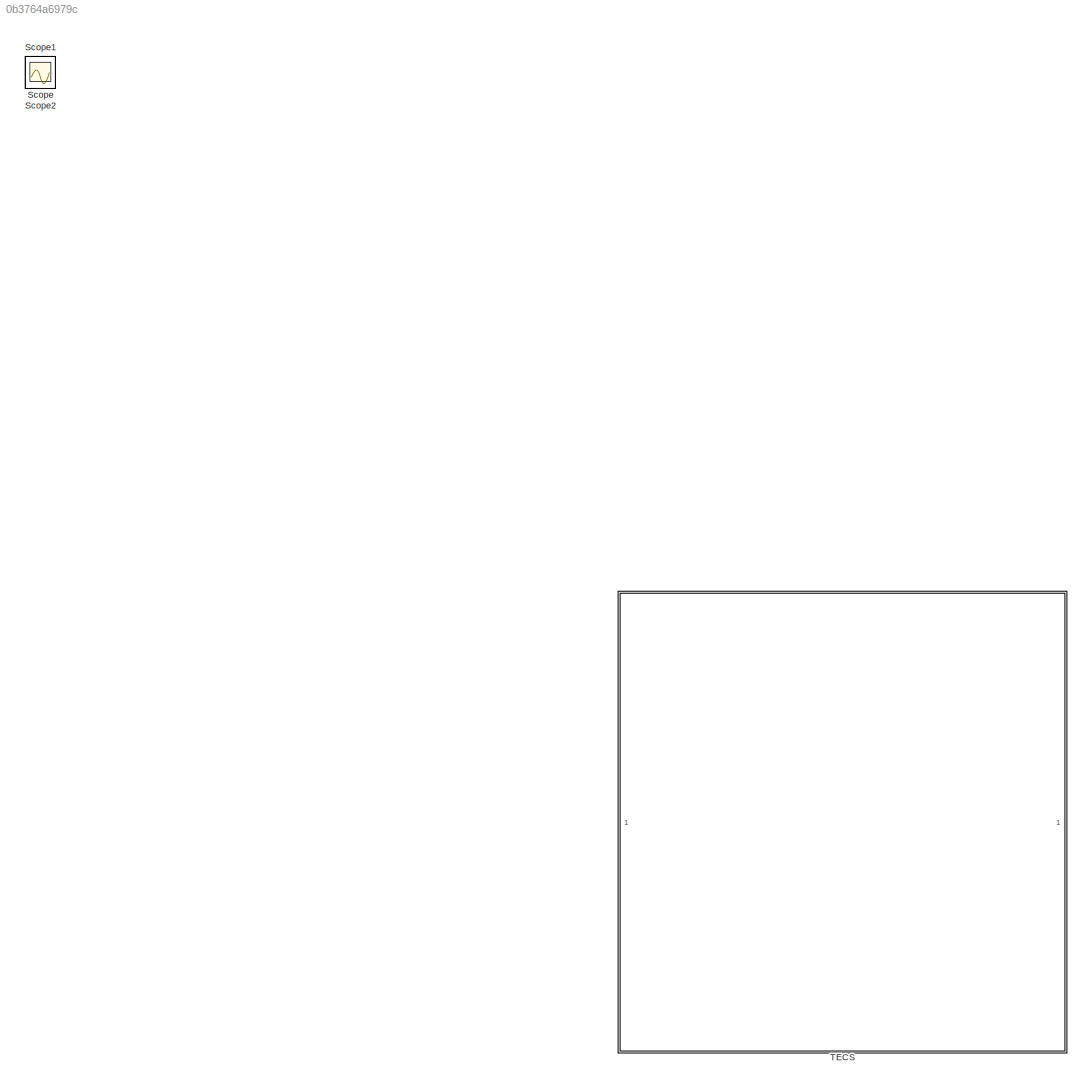
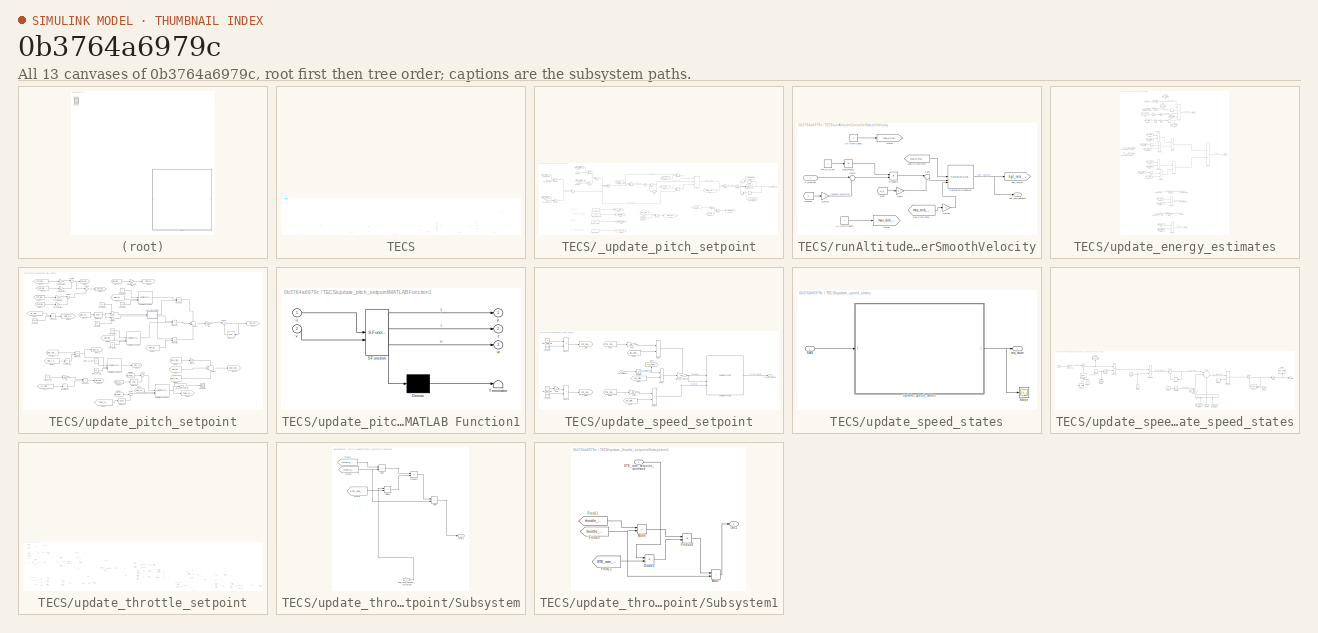
[diagram: thumbnail index - all 13 canvases of the model, root first then tree order]
MODEL slx_0b3764a6979c
KIND model
CONFIG AbsTol = auto
CONFIG EnableMultiTasking = off
CONFIG FixedStep = .02
CONFIG MaxStep = auto
CONFIG MinStep = auto
CONFIG RelTol = 1e-3
CONFIG SampleTimeConstraint = Unconstrained
CONFIG SolverName = ode4
CONFIG StartTime = 0.0
CONFIG StopTime = 50
BLOCK [Scope] Scope
  Floating = off
  IOType = viewer
  NumInputPorts = 1
  ScopeSpecificationString = Simulink.scopes.TimeScopeBlockCfg('CurrentConfiguration', extmgr.ConfigurationSet(extmgr.Configuration('Core','General UI',true),extmgr.Configuration('Core','Source UI',true),extmgr.Configuration('Sources','WiredSimulink',true,'DataLoggingVariableName','ScopeData1'),extmgr.Configuration('Visuals','Time Domain',true,'SerializedDisplays',{struct('MinYLimReal','17.54706','MaxYLimReal','18.37297','YLa...<+1449ch>
BLOCK [Scope] Scope1
  Floating = off
  IOType = viewer
  NumInputPorts = 1
  ScopeSpecificationString = Simulink.scopes.TimeScopeBlockCfg('CurrentConfiguration', extmgr.ConfigurationSet(extmgr.Configuration('Core','General UI',true,'FigureColor',[1 1 1]),extmgr.Configuration('Core','Source UI',true),extmgr.Configuration('Sources','WiredSimulink',true,'DataLoggingVariableName','ScopeData2'),extmgr.Configuration('Visuals','Time Domain',true,'SerializedDisplays',{struct('MinYLimReal','17.54706','MaxYLi...<+1589ch>
BLOCK [Scope] Scope2
  Floating = off
  IOType = viewer
  NumInputPorts = 1
  ScopeSpecificationString = Simulink.scopes.TimeScopeBlockCfg('CurrentConfiguration', extmgr.ConfigurationSet(extmgr.Configuration('Core','General UI',true),extmgr.Configuration('Core','Source UI',true),extmgr.Configuration('Sources','WiredSimulink',true,'DataLoggingVariableName','ScopeData3'),extmgr.Configuration('Visuals','Time Domain',true,'SerializedDisplays',{struct('MinYLimReal','17.1438','MaxYLimReal','18.60171','YLab...<+1471ch>
BLOCK [SubSystem] TECS
BLOCK [From] TECS/From10
  GotoTag = SKE_rate
  TagVisibility = global
BLOCK [From] TECS/From13
  GotoTag = V_tot
  NameLocation = top
  TagVisibility = global
BLOCK [From] TECS/From15
  GotoTag = w_e
  TagVisibility = global
BLOCK [From] TECS/From16
  GotoTag = Z
  TagVisibility = global
BLOCK [From] TECS/From7
  GotoTag = SPE_rate_setpoint
  TagVisibility = global
BLOCK [From] TECS/From8
  GotoTag = SKE_rate_setpoint
  TagVisibility = global
BLOCK [From] TECS/From9
  GotoTag = SPE_rate
  TagVisibility = global
BLOCK [Goto] TECS/Goto
  GotoTag = SPE_rate_setpoint
  TagVisibility = global
BLOCK [Goto] TECS/Goto1
  GotoTag = SKE_rate_setpoint
  TagVisibility = global
BLOCK [Goto] TECS/Goto2
  GotoTag = tas_state_output
  TagVisibility = global
BLOCK [Goto] TECS/Goto3
  GotoTag = SPE_rate
  TagVisibility = global
BLOCK [Goto] TECS/Goto4
  GotoTag = SKE_rate
  TagVisibility = global
BLOCK [Goto] TECS/Goto5
  GotoTag = STE_error
  TagVisibility = global
BLOCK [Goto] TECS/Goto6
  GotoTag = SEB_error
  TagVisibility = global
BLOCK [Goto] TECS/Goto8
  GotoTag = TAS_rate_setpoint
  TagVisibility = global
BLOCK [Inport] TECS/H_SP
BLOCK [Scope] TECS/Scope
  Floating = off
  NumInputPorts = 1
  ScopeSpecificationString = Simulink.scopes.TimeScopeBlockCfg('CurrentConfiguration', extmgr.ConfigurationSet(extmgr.Configuration('Core','General UI',true),extmgr.Configuration('Core','Source UI',true),extmgr.Configuration('Sources','WiredSimulink',true,'DataLoggingVariableName','ScopeData2'),extmgr.Configuration('Visuals','Time Domain',true,'SerializedDisplays',{struct('MinYLimReal','-0.01773','MaxYLimReal','0.15849','YLab...<+1407ch>
BLOCK [Scope] TECS/Scope1
  Floating = off
  NumInputPorts = 1
  ScopeSpecificationString = Simulink.scopes.TimeScopeBlockCfg('CurrentConfiguration', extmgr.ConfigurationSet(extmgr.Configuration('Core','General UI',true),extmgr.Configuration('Core','Source UI',true),extmgr.Configuration('Sources','WiredSimulink',true,'DataLoggingVariableName','ScopeData3'),extmgr.Configuration('Visuals','Time Domain',true,'SerializedDisplays',{struct('MinYLimReal','-56.41621','MaxYLimReal','7.74588','YLa...<+1398ch>
BLOCK [Scope] TECS/Scope2
  Floating = off
  NumInputPorts = 1
  ScopeSpecificationString = Simulink.scopes.TimeScopeBlockCfg('CurrentConfiguration', extmgr.ConfigurationSet(extmgr.Configuration('Core','General UI',true),extmgr.Configuration('Core','Source UI',true),extmgr.Configuration('Sources','WiredSimulink',true,'DataLoggingVariableName','ScopeData4'),extmgr.Configuration('Visuals','Time Domain',true,'SerializedDisplays',{struct('MinYLimReal','-813598.375','MaxYLimReal','158455.375'...<+1449ch>
BLOCK [Scope] TECS/Scope3
  Floating = off
  NumInputPorts = 1
  ScopeSpecificationString = Simulink.scopes.TimeScopeBlockCfg('CurrentConfiguration', extmgr.ConfigurationSet(extmgr.Configuration('Core','General UI',true),extmgr.Configuration('Core','Source UI',true),extmgr.Configuration('Sources','WiredSimulink',true,'DataLoggingVariableName','ScopeData5'),extmgr.Configuration('Visuals','Time Domain',true,'SerializedDisplays',{struct('MinYLimReal','-392583.0625','MaxYLimReal','9592.5625'...<+1453ch>
BLOCK [Scope] TECS/Scope4
  Floating = off
  NumInputPorts = 1
  ScopeSpecificationString = Simulink.scopes.TimeScopeBlockCfg('CurrentConfiguration', extmgr.ConfigurationSet(extmgr.Configuration('Core','General UI',true),extmgr.Configuration('Core','Source UI',true),extmgr.Configuration('Sources','WiredSimulink',true,'DataLoggingVariableName','ScopeData6'),extmgr.Configuration('Visuals','Time Domain',true,'SerializedDisplays',{struct('MinYLimReal','-1815.13792','MaxYLimReal','249.21631',...<+1453ch>
BLOCK [Scope] TECS/Scope5
  Floating = off
  NumInputPorts = 1
  ScopeSpecificationString = Simulink.scopes.TimeScopeBlockCfg('CurrentConfiguration', extmgr.ConfigurationSet(extmgr.Configuration('Core','General UI',true),extmgr.Configuration('Core','Source UI',true),extmgr.Configuration('Sources','WiredSimulink',true,'DataLoggingVariableName','ScopeData7'),extmgr.Configuration('Visuals','Time Domain',true,'SerializedDisplays',{struct('MinYLimReal','-350.54818','MaxYLimReal','-62.47142','...<+1447ch>
BLOCK [Scope] TECS/Scope6
  Floating = off
  NumInputPorts = 1
  ScopeSpecificationString = Simulink.scopes.TimeScopeBlockCfg('CurrentConfiguration', extmgr.ConfigurationSet(extmgr.Configuration('Core','General UI',true),extmgr.Configuration('Core','Source UI',true),extmgr.Configuration('Sources','WiredSimulink',true,'DataLoggingVariableName','ScopeData8'),extmgr.Configuration('Visuals','Time Domain',true,'SerializedDisplays',{struct('MinYLimReal','-3821.62643','MaxYLimReal','532.26636',...<+1444ch>
BLOCK [Scope] TECS/Scope7
  Floating = off
  NumInputPorts = 1
  ScopeSpecificationString = Simulink.scopes.TimeScopeBlockCfg('CurrentConfiguration', extmgr.ConfigurationSet(extmgr.Configuration('Core','General UI',true),extmgr.Configuration('Core','Source UI',true),extmgr.Configuration('Sources','WiredSimulink',true,'DataLoggingVariableName','ScopeData9'),extmgr.Configuration('Visuals','Time Domain',true,'SerializedDisplays',{struct('MinYLimReal','-6089.61247','MaxYLimReal','2620.87269'...<+1446ch>
BLOCK [Scope] TECS/Scope9
  Commented = on
  Floating = off
  NumInputPorts = 1
  ScopeSpecificationString = Simulink.scopes.TimeScopeBlockCfg('CurrentConfiguration', extmgr.ConfigurationSet(extmgr.Configuration('Core','General UI',true),extmgr.Configuration('Core','Source UI',true),extmgr.Configuration('Sources','WiredSimulink',true,'DataLoggingVariableName','ScopeData11'),extmgr.Configuration('Visuals','Time Domain',true,'SerializedDisplays',{struct('MinYLimReal','-0.17379','MaxYLimReal','0.313','YLabe...<+1442ch>
BLOCK [Inport] TECS/V_SP
  Port = 2
BLOCK [SubSystem] TECS/_update_pitch_setpoint
BLOCK [Sum] TECS/_update_pitch_setpoint/Add
  IconShape = rectangular
  Inputs = +-
BLOCK [Sum] TECS/_update_pitch_setpoint/Add1
  IconShape = rectangular
  Inputs = +-
BLOCK [Sum] TECS/_update_pitch_setpoint/Add2
  IconShape = rectangular
  Inputs = -+
BLOCK [Sum] TECS/_update_pitch_setpoint/Add3
  IconShape = rectangular
BLOCK [Sum] TECS/_update_pitch_setpoint/Add4
  IconShape = rectangular
  Inputs = +++
BLOCK [Sum] TECS/_update_pitch_setpoint/Add5
  IconShape = rectangular
  Inputs = +-
  NameLocation = top
BLOCK [Sum] TECS/_update_pitch_setpoint/Add6
  IconShape = rectangular
  NameLocation = top
BLOCK [Constant] TECS/_update_pitch_setpoint/Constant
  Value = gravity
BLOCK [Delay] TECS/_update_pitch_setpoint/Delay
  DelayLength = 1
  InputPortMap = u0
  NameLocation = top
BLOCK [Delay] TECS/_update_pitch_setpoint/Delay1
  DelayLength = 1
  InputPortMap = u0
  NameLocation = top
BLOCK [Delay] TECS/_update_pitch_setpoint/Delay2
  DelayLength = 1
  InputPortMap = u0
  NameLocation = top
BLOCK [Product] TECS/_update_pitch_setpoint/Divide
  Inputs = */
BLOCK [Product] TECS/_update_pitch_setpoint/Divide1
  Inputs = */
BLOCK [Constant] TECS/_update_pitch_setpoint/FW_T_SEB_R_FF
BLOCK [From] TECS/_update_pitch_setpoint/From
  GotoTag = SPE_weighting
  TagVisibility = global
BLOCK [From] TECS/_update_pitch_setpoint/From1
  GotoTag = SKE_weighting
  TagVisibility = global
BLOCK [From] TECS/_update_pitch_setpoint/From10
  GotoTag = tas_state
  TagVisibility = global
BLOCK [From] TECS/_update_pitch_setpoint/From11
  GotoTag = ptchRateIncr
  NameLocation = top
  TagVisibility = global
BLOCK [From] TECS/_update_pitch_setpoint/From12
  GotoTag = ptchRateIncr
  NameLocation = top
  TagVisibility = global
BLOCK [From] TECS/_update_pitch_setpoint/From2
  GotoTag = SPE_weighting
  TagVisibility = global
BLOCK [From] TECS/_update_pitch_setpoint/From3
  GotoTag = SKE_weighting
  TagVisibility = global
BLOCK [From] TECS/_update_pitch_setpoint/From4
  GotoTag = integrator_gain_pitch
  TagVisibility = global
BLOCK [From] TECS/_update_pitch_setpoint/From5
  GotoTag = tas_state
  TagVisibility = global
BLOCK [From] TECS/_update_pitch_setpoint/From6
  GotoTag = pitch_damping_gain
  TagVisibility = global
BLOCK [From] TECS/_update_pitch_setpoint/From7
  GotoTag = FW_T_SEB_R_FF
  TagVisibility = global
BLOCK [From] TECS/_update_pitch_setpoint/From8
  GotoTag = climb_angle_to_SEB_rate
  TagVisibility = global
BLOCK [From] TECS/_update_pitch_setpoint/From9
  GotoTag = fw_t_vert_acc
  TagVisibility = global
BLOCK [Gain] TECS/_update_pitch_setpoint/Gain
  Gain = .02
BLOCK [Gain] TECS/_update_pitch_setpoint/Gain1
  Gain = .02
BLOCK [Goto] TECS/_update_pitch_setpoint/Goto
  GotoTag = climb_angle_to_SEB_rate
  TagVisibility = global
BLOCK [Goto] TECS/_update_pitch_setpoint/Goto1
  GotoTag = integrator_gain_pitch
  TagVisibility = global
BLOCK [Goto] TECS/_update_pitch_setpoint/Goto2
  GotoTag = pitch_damping_gain
  TagVisibility = global
BLOCK [Goto] TECS/_update_pitch_setpoint/Goto3
  GotoTag = FW_T_SEB_R_FF
  TagVisibility = global
BLOCK [Goto] TECS/_update_pitch_setpoint/Goto4
  GotoTag = fw_t_vert_acc
  TagVisibility = global
BLOCK [Goto] TECS/_update_pitch_setpoint/Goto5
  GotoTag = ptchRateIncr
  TagVisibility = global
BLOCK [Product] TECS/_update_pitch_setpoint/Product
BLOCK [Product] TECS/_update_pitch_setpoint/Product1
BLOCK [Product] TECS/_update_pitch_setpoint/Product2
BLOCK [Product] TECS/_update_pitch_setpoint/Product3
BLOCK [Product] TECS/_update_pitch_setpoint/Product4
BLOCK [Product] TECS/_update_pitch_setpoint/Product5
BLOCK [Product] TECS/_update_pitch_setpoint/Product6
BLOCK [Product] TECS/_update_pitch_setpoint/Product7
BLOCK [Inport] TECS/_update_pitch_setpoint/SKE_Rate
  Port = 3
BLOCK [Inport] TECS/_update_pitch_setpoint/SKE_rate_setpoint
  Port = 4
BLOCK [Inport] TECS/_update_pitch_setpoint/SPE_Rate
  Port = 2
BLOCK [Inport] TECS/_update_pitch_setpoint/SPE_rate_setpoint
BLOCK [Saturate] TECS/_update_pitch_setpoint/Saturation
BLOCK [Reference] TECS/_update_pitch_setpoint/Saturation Dynamic  REF=simulink/Discontinuities/Saturation
Dynamic
  SourceBlock = simulink/Discontinuities/Saturation\nDynamic
  SourceType = Saturation Dynamic
BLOCK [Constant] TECS/_update_pitch_setpoint/_integrator_gain_pitch
  Value = 0.1
BLOCK [Outport] TECS/_update_pitch_setpoint/_last_pitch_setpoint
BLOCK [Constant] TECS/_update_pitch_setpoint/fw_t_ptch_damp
  Value = 0.1
BLOCK [Constant] TECS/_update_pitch_setpoint/fw_t_vert_acc
  Value = 7
BLOCK [SubSystem] TECS/runAltitudeControllerSmoothVelocity
BLOCK [Constant] TECS/runAltitudeControllerSmoothVelocity/Alt time Const1
  Value = 5
BLOCK [Constant] TECS/runAltitudeControllerSmoothVelocity/Alt time Const2
  Value = 2
BLOCK [Constant] TECS/runAltitudeControllerSmoothVelocity/FW_T_ALT_TC
  Value = 3
BLOCK [From] TECS/runAltitudeControllerSmoothVelocity/From
  GotoTag = w_e
  TagVisibility = global
BLOCK [From] TECS/runAltitudeControllerSmoothVelocity/From93
  GotoTag = Z
  TagVisibility = global
BLOCK [Gain] TECS/runAltitudeControllerSmoothVelocity/Gain
  Gain = 0.4
BLOCK [Gain] TECS/runAltitudeControllerSmoothVelocity/Gain12
  Gain = -1
BLOCK [Gain] TECS/runAltitudeControllerSmoothVelocity/Gain14
  Gain = -1
BLOCK [Goto] TECS/runAltitudeControllerSmoothVelocity/Goto1
  GotoTag = max_climb_rate
BLOCK [Goto] TECS/runAltitudeControllerSmoothVelocity/Goto2
  GotoTag = max_sink_rate
BLOCK [Inport] TECS/runAltitudeControllerSmoothVelocity/H_Desired
BLOCK [From] TECS/runAltitudeControllerSmoothVelocity/Max Climb rate1
  GotoTag = max_climb_rate
BLOCK [From] TECS/runAltitudeControllerSmoothVelocity/Max Sink rate1
  GotoTag = max_sink_rate
BLOCK [Product] TECS/runAltitudeControllerSmoothVelocity/Product4
BLOCK [Product] TECS/runAltitudeControllerSmoothVelocity/Reciprocal1
  Inputs = /
BLOCK [Reference] TECS/runAltitudeControllerSmoothVelocity/Saturation Dynamic2  REF=simulink/Discontinuities/Saturation
Dynamic
  SourceBlock = simulink/Discontinuities/Saturation\nDynamic
  SourceType = Saturation Dynamic
BLOCK [Sum] TECS/runAltitudeControllerSmoothVelocity/Sum
  Inputs = |++
BLOCK [Sum] TECS/runAltitudeControllerSmoothVelocity/Sum9
  Inputs = |+-
BLOCK [Outport] TECS/runAltitudeControllerSmoothVelocity/hgt_rate_setpoint
BLOCK [Goto] TECS/runAltitudeControllerSmoothVelocity/hgt_rate_sp
  GotoTag = hgt_rate_sp
  TagVisibility = global
BLOCK [Outport] TECS/theta_sp
  Port = 2
BLOCK [Outport] TECS/throttle_sp
BLOCK [SubSystem] TECS/update_energy_estimates
BLOCK [Sum] TECS/update_energy_estimates/Add
  IconShape = rectangular
  Inputs = +-+-
BLOCK [Delay] TECS/update_energy_estimates/Delay
  DelayLength = 1
  InputPortMap = u0
BLOCK [Delay] TECS/update_energy_estimates/Delay1
  DelayLength = 1
  InputPortMap = u0
BLOCK [Delay] TECS/update_energy_estimates/Delay2
  DelayLength = 1
  InputPortMap = u0
BLOCK [Delay] TECS/update_energy_estimates/Delay3
  DelayLength = 1
  InputPortMap = u0
BLOCK [From] TECS/update_energy_estimates/From
  GotoTag = tas_state_output
  TagVisibility = global
BLOCK [From] TECS/update_energy_estimates/From1
  GotoTag = SPE_setpoint
  TagVisibility = global
BLOCK [From] TECS/update_energy_estimates/From10
  GotoTag = TAS_rate_setpoint
  TagVisibility = global
BLOCK [From] TECS/update_energy_estimates/From11
  GotoTag = tas_state_output
  TagVisibility = global
BLOCK [From] TECS/update_energy_estimates/From13
  GotoTag = tas_state_output
  TagVisibility = global
BLOCK [From] TECS/update_energy_estimates/From14
  GotoTag = tas_rate_raw
  TagVisibility = global
BLOCK [From] TECS/update_energy_estimates/From2
  GotoTag = SKE_setpoint
  TagVisibility = global
BLOCK [From] TECS/update_energy_estimates/From3
  GotoTag = SPE_estimate
  TagVisibility = global
BLOCK [From] TECS/update_energy_estimates/From4
  GotoTag = SKE_estimate
  NameLocation = right
  TagVisibility = global
BLOCK [From] TECS/update_energy_estimates/From5
  GotoTag = TAS_setpoint_adj
  TagVisibility = global
BLOCK [From] TECS/update_energy_estimates/From6
  GotoTag = SPE_weighting
  TagVisibility = global
BLOCK [From] TECS/update_energy_estimates/From7
  GotoTag = SKE_weighting
  TagVisibility = global
BLOCK [From] TECS/update_energy_estimates/From8
  GotoTag = SPE_weighting
  TagVisibility = global
BLOCK [From] TECS/update_energy_estimates/From9
  GotoTag = SKE_weighting
  TagVisibility = global
BLOCK [Gain] TECS/update_energy_estimates/Gain
  Gain = gravity
BLOCK [Gain] TECS/update_energy_estimates/Gain1
  Gain = 0.5
BLOCK [Gain] TECS/update_energy_estimates/Gain2
  Gain = gravity
BLOCK [Gain] TECS/update_energy_estimates/Gain3
  Gain = 0.5
BLOCK [Gain] TECS/update_energy_estimates/Gain4
  Gain = gravity
BLOCK [Gain] TECS/update_energy_estimates/Gain5
  Gain = gravity
BLOCK [Gain] TECS/update_energy_estimates/Gain6
  Gain = -1
BLOCK [Gain] TECS/update_energy_estimates/Gain7
  Gain = -1
BLOCK [Goto] TECS/update_energy_estimates/Goto
  GotoTag = SPE_setpoint
  NameLocation = right
  TagVisibility = global
BLOCK [Goto] TECS/update_energy_estimates/Goto1
  GotoTag = SKE_setpoint
  NameLocation = left
  TagVisibility = global
BLOCK [Goto] TECS/update_energy_estimates/Goto3
  GotoTag = SPE_estimate
  NameLocation = right
  TagVisibility = global
BLOCK [Goto] TECS/update_energy_estimates/Goto4
  GotoTag = SKE_estimate
  NameLocation = left
  TagVisibility = global
BLOCK [Goto] TECS/update_energy_estimates/Goto5
  GotoTag = SPE_weighting
  TagVisibility = global
BLOCK [Goto] TECS/update_energy_estimates/Goto6
  GotoTag = SKE_weighting
  TagVisibility = global
BLOCK [Sum] TECS/update_energy_estimates/Minus
  IconShape = rectangular
  Inputs = +-
BLOCK [Sum] TECS/update_energy_estimates/Minus1
  IconShape = rectangular
  Inputs = +-
BLOCK [Sum] TECS/update_energy_estimates/Minus2
  IconShape = rectangular
  Inputs = +-
BLOCK [Product] TECS/update_energy_estimates/Product
BLOCK [Product] TECS/update_energy_estimates/Product1
BLOCK [Product] TECS/update_energy_estimates/Product2
BLOCK [Product] TECS/update_energy_estimates/Product3
BLOCK [Product] TECS/update_energy_estimates/Product4
BLOCK [Product] TECS/update_energy_estimates/Product5
BLOCK [Outport] TECS/update_energy_estimates/SEB_error
  Port = 2
BLOCK [Outport] TECS/update_energy_estimates/SKE_rate
  Port = 6
BLOCK [Outport] TECS/update_energy_estimates/SKE_rate_setpoint
  Port = 4
BLOCK [Constant] TECS/update_energy_estimates/SKE_weighting
BLOCK [Outport] TECS/update_energy_estimates/SPE_rate
  Port = 5
BLOCK [Outport] TECS/update_energy_estimates/SPE_rate_setpoint
  Port = 3
BLOCK [Constant] TECS/update_energy_estimates/SPE_weighting
BLOCK [Outport] TECS/update_energy_estimates/STE_error
BLOCK [Math] TECS/update_energy_estimates/Square
  Operator = square
BLOCK [Math] TECS/update_energy_estimates/Square1
  Operator = square
BLOCK [Inport] TECS/update_energy_estimates/hgt_rate_setpoint
  Port = 3
BLOCK [Inport] TECS/update_energy_estimates/hgt_setpoint
BLOCK [Inport] TECS/update_energy_estimates/vert_pos_state z from (6DoF)
  Port = 2
BLOCK [Inport] TECS/update_energy_estimates/vert_vel_state
  Port = 4
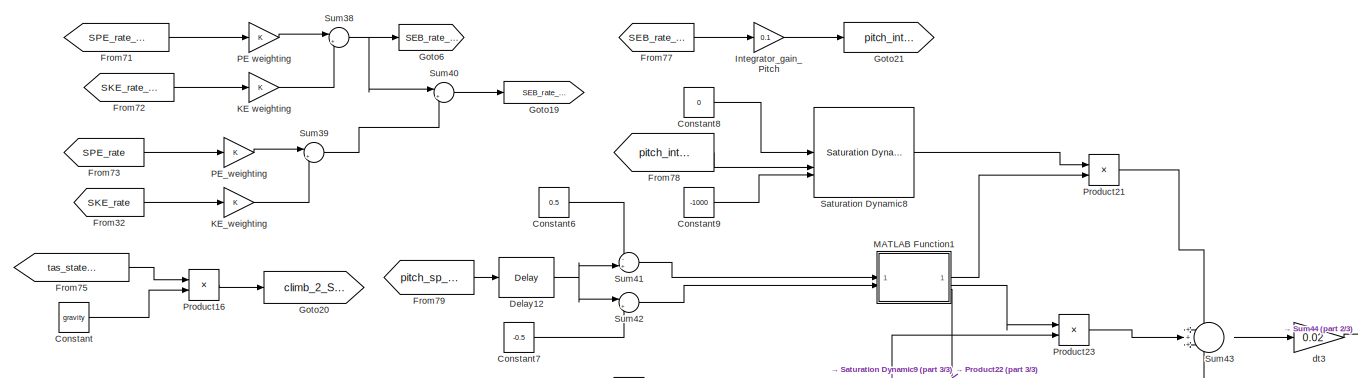
[diagram: TECS/update_pitch_setpoint - part 1/3, full width, top band]
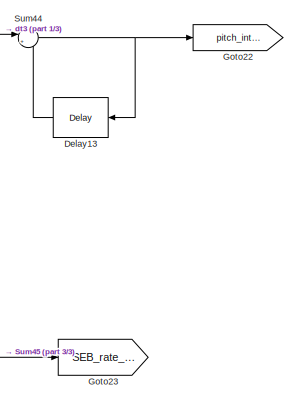
[diagram: TECS/update_pitch_setpoint - part 2/3, middle right region]
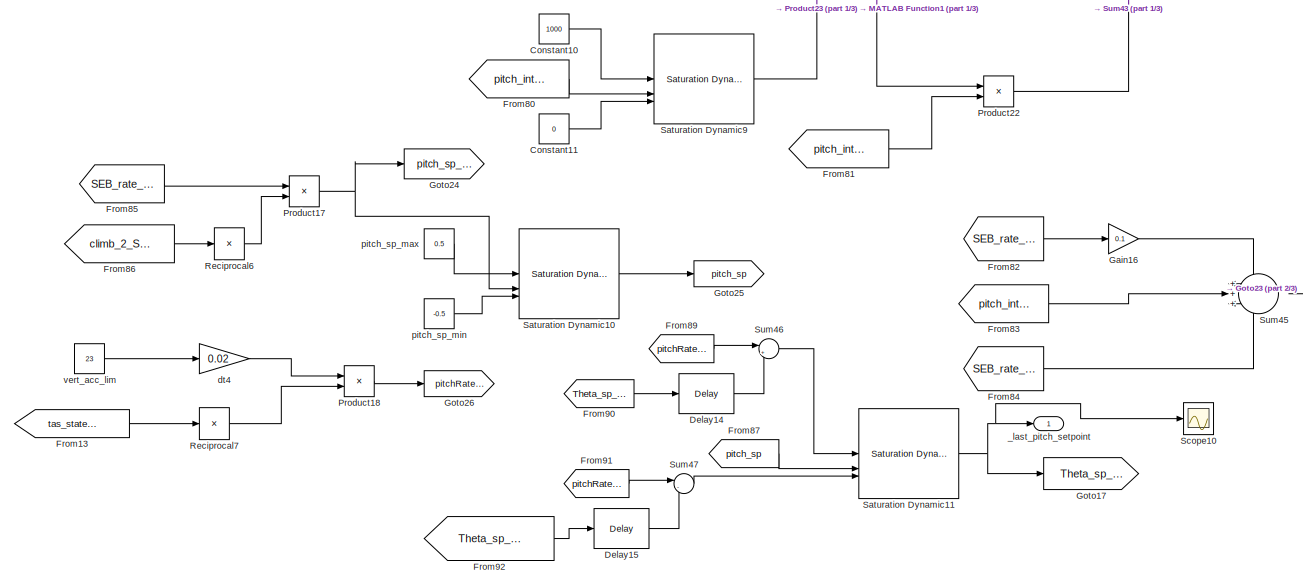
[diagram: TECS/update_pitch_setpoint - part 3/3, full width, bottom band]
BLOCK [SubSystem] TECS/update_pitch_setpoint
  Commented = on
BLOCK [Constant] TECS/update_pitch_setpoint/Constant
  Value = gravity
BLOCK [Constant] TECS/update_pitch_setpoint/Constant10
  Value = 1000
BLOCK [Constant] TECS/update_pitch_setpoint/Constant11
  Value = 0
BLOCK [Constant] TECS/update_pitch_setpoint/Constant6
  Value = 0.5
BLOCK [Constant] TECS/update_pitch_setpoint/Constant7
  Value = -0.5
BLOCK [Constant] TECS/update_pitch_setpoint/Constant8
  Value = 0
BLOCK [Constant] TECS/update_pitch_setpoint/Constant9
  Value = -1000
BLOCK [Delay] TECS/update_pitch_setpoint/Delay12
  DelayLength = 1
  InitialCondition = 0
  InputPortMap = u0
  SampleTime = 0.02
  UseCircularBuffer = on
  UserDataPersistent = on
BLOCK [Delay] TECS/update_pitch_setpoint/Delay13
  DelayLength = 1
  InitialCondition = 0
  InputPortMap = u0
  NameLocation = top
  SampleTime = 0.02
  UseCircularBuffer = on
  UserDataPersistent = on
BLOCK [Delay] TECS/update_pitch_setpoint/Delay14
  DelayLength = 1
  InitialCondition = 0
  InputPortMap = u0
  SampleTime = 0.02
  UseCircularBuffer = on
  UserDataPersistent = on
BLOCK [Delay] TECS/update_pitch_setpoint/Delay15
  DelayLength = 1
  InitialCondition = 0
  InputPortMap = u0
  SampleTime = 0.02
  UseCircularBuffer = on
  UserDataPersistent = on
BLOCK [From] TECS/update_pitch_setpoint/From13
  GotoTag = tas_state_output
  TagVisibility = global
BLOCK [From] TECS/update_pitch_setpoint/From32
  GotoTag = SKE_rate
  TagVisibility = global
BLOCK [From] TECS/update_pitch_setpoint/From71
  GotoTag = SPE_rate_setpoint
  TagVisibility = global
BLOCK [From] TECS/update_pitch_setpoint/From72
  GotoTag = SKE_rate_setpoint
  TagVisibility = global
BLOCK [From] TECS/update_pitch_setpoint/From73
  GotoTag = SPE_rate
  TagVisibility = global
BLOCK [From] TECS/update_pitch_setpoint/From75
  GotoTag = tas_state_output
  TagVisibility = global
BLOCK [From] TECS/update_pitch_setpoint/From77
  GotoTag = SEB_rate_error
  TagVisibility = global
BLOCK [From] TECS/update_pitch_setpoint/From78
  GotoTag = pitch_integ_input
BLOCK [From] TECS/update_pitch_setpoint/From79
  GotoTag = pitch_sp_unc
BLOCK [From] TECS/update_pitch_setpoint/From80
  GotoTag = pitch_integ_input
BLOCK [From] TECS/update_pitch_setpoint/From81
  GotoTag = pitch_integ_input
BLOCK [From] TECS/update_pitch_setpoint/From82
  GotoTag = SEB_rate_error
  TagVisibility = global
BLOCK [From] TECS/update_pitch_setpoint/From83
  GotoTag = pitch_integ_state
  TagVisibility = global
BLOCK [From] TECS/update_pitch_setpoint/From84
  GotoTag = SEB_rate_sp
  TagVisibility = global
BLOCK [From] TECS/update_pitch_setpoint/From85
  GotoTag = SEB_rate_corr
BLOCK [From] TECS/update_pitch_setpoint/From86
  GotoTag = climb_2_SEB_rate
BLOCK [From] TECS/update_pitch_setpoint/From87
  GotoTag = pitch_sp
BLOCK [From] TECS/update_pitch_setpoint/From89
  GotoTag = pitchRateIncr
BLOCK [From] TECS/update_pitch_setpoint/From90
  GotoTag = Theta_sp_last
BLOCK [From] TECS/update_pitch_setpoint/From91
  GotoTag = pitchRateIncr
BLOCK [From] TECS/update_pitch_setpoint/From92
  GotoTag = Theta_sp_last
BLOCK [Gain] TECS/update_pitch_setpoint/Gain16
  Gain = 0.1
BLOCK [Goto] TECS/update_pitch_setpoint/Goto17
  GotoTag = Theta_sp_last
BLOCK [Goto] TECS/update_pitch_setpoint/Goto19
  GotoTag = SEB_rate_error
  TagVisibility = global
BLOCK [Goto] TECS/update_pitch_setpoint/Goto20
  GotoTag = climb_2_SEB_rate
BLOCK [Goto] TECS/update_pitch_setpoint/Goto21
  GotoTag = pitch_integ_input
BLOCK [Goto] TECS/update_pitch_setpoint/Goto22
  GotoTag = pitch_integ_state
  TagVisibility = global
BLOCK [Goto] TECS/update_pitch_setpoint/Goto23
  GotoTag = SEB_rate_corr
BLOCK [Goto] TECS/update_pitch_setpoint/Goto24
  GotoTag = pitch_sp_unc
BLOCK [Goto] TECS/update_pitch_setpoint/Goto25
  GotoTag = pitch_sp
BLOCK [Goto] TECS/update_pitch_setpoint/Goto26
  GotoTag = pitchRateIncr
BLOCK [Goto] TECS/update_pitch_setpoint/Goto6
  GotoTag = SEB_rate_sp
  TagVisibility = global
BLOCK [Gain] TECS/update_pitch_setpoint/Integrator_gain_Pitch
  Gain = 0.1
BLOCK [Gain] TECS/update_pitch_setpoint/KE weighting
BLOCK [Gain] TECS/update_pitch_setpoint/KE_weighting
BLOCK [SubSystem] TECS/update_pitch_setpoint/MATLAB Function1
  ErrorFcn = Stateflow.Translate.translate
  PermitHierarchicalResolution = ExplicitOnly
  SFBlockType = MATLAB Function
  TreatAsAtomicUnit = on
BLOCK [Demux] TECS/update_pitch_setpoint/MATLAB Function1/ Demux 
  Outputs = 1
BLOCK [S-Function] TECS/update_pitch_setpoint/MATLAB Function1/ SFunction 
  EnableBusSupport = on
  FunctionName = sf_sfun
  PortCounts = [2 4]
  SFcnIsStateOwnerBlock = off
  SFunctionDeploymentMode = off
  Tag = Stateflow S-Function 4
BLOCK [Terminator] TECS/update_pitch_setpoint/MATLAB Function1/ Terminator 
BLOCK [Inport] TECS/update_pitch_setpoint/MATLAB Function1/u
BLOCK [Inport] TECS/update_pitch_setpoint/MATLAB Function1/v
  Port = 2
BLOCK [Outport] TECS/update_pitch_setpoint/MATLAB Function1/w
  Port = 3
BLOCK [Outport] TECS/update_pitch_setpoint/MATLAB Function1/y
BLOCK [Outport] TECS/update_pitch_setpoint/MATLAB Function1/z
  Port = 2
BLOCK [Gain] TECS/update_pitch_setpoint/PE weighting
BLOCK [Gain] TECS/update_pitch_setpoint/PE_weighting
BLOCK [Product] TECS/update_pitch_setpoint/Product16
BLOCK [Product] TECS/update_pitch_setpoint/Product17
BLOCK [Product] TECS/update_pitch_setpoint/Product18
BLOCK [Product] TECS/update_pitch_setpoint/Product21
BLOCK [Product] TECS/update_pitch_setpoint/Product22
BLOCK [Product] TECS/update_pitch_setpoint/Product23
BLOCK [Product] TECS/update_pitch_setpoint/Reciprocal6
  Inputs = /
BLOCK [Product] TECS/update_pitch_setpoint/Reciprocal7
  Inputs = /
BLOCK [Reference] TECS/update_pitch_setpoint/Saturation Dynamic10  REF=simulink/Discontinuities/Saturation
Dynamic
  SourceBlock = simulink/Discontinuities/Saturation\nDynamic
  SourceType = Saturation Dynamic
BLOCK [Reference] TECS/update_pitch_setpoint/Saturation Dynamic11  REF=simulink/Discontinuities/Saturation
Dynamic
  SourceBlock = simulink/Discontinuities/Saturation\nDynamic
  SourceType = Saturation Dynamic
BLOCK [Reference] TECS/update_pitch_setpoint/Saturation Dynamic8  REF=simulink/Discontinuities/Saturation
Dynamic
  SourceBlock = simulink/Discontinuities/Saturation\nDynamic
  SourceType = Saturation Dynamic
BLOCK [Reference] TECS/update_pitch_setpoint/Saturation Dynamic9  REF=simulink/Discontinuities/Saturation
Dynamic
  SourceBlock = simulink/Discontinuities/Saturation\nDynamic
  SourceType = Saturation Dynamic
BLOCK [Scope] TECS/update_pitch_setpoint/Scope10
  Floating = off
  NumInputPorts = 1
  ScopeSpecificationString = Simulink.scopes.TimeScopeBlockCfg('CurrentConfiguration', extmgr.ConfigurationSet(extmgr.Configuration('Core','General UI',true),extmgr.Configuration('Core','Source UI',true),extmgr.Configuration('Sources','WiredSimulink',true,'DataLoggingVariableName','ScopeData12'),extmgr.Configuration('Visuals','Time Domain',true,'SerializedDisplays',{struct('MinYLimReal','-0.17379','MaxYLimReal','0.313','YLabe...<+1403ch>
BLOCK [Sum] TECS/update_pitch_setpoint/Sum38
  Inputs = |+-
BLOCK [Sum] TECS/update_pitch_setpoint/Sum39
  Inputs = |+-
BLOCK [Sum] TECS/update_pitch_setpoint/Sum40
  Inputs = |+-
BLOCK [Sum] TECS/update_pitch_setpoint/Sum41
  Inputs = -+|
BLOCK [Sum] TECS/update_pitch_setpoint/Sum42
  Inputs = |+-
BLOCK [Sum] TECS/update_pitch_setpoint/Sum43
  Inputs = +++
BLOCK [Sum] TECS/update_pitch_setpoint/Sum44
  Inputs = |++
BLOCK [Sum] TECS/update_pitch_setpoint/Sum45
  Inputs = +++
BLOCK [Sum] TECS/update_pitch_setpoint/Sum46
  Inputs = |++
BLOCK [Sum] TECS/update_pitch_setpoint/Sum47
  Inputs = |-+
BLOCK [Outport] TECS/update_pitch_setpoint/_last_pitch_setpoint
BLOCK [Gain] TECS/update_pitch_setpoint/dt3
  Gain = 0.02
BLOCK [Gain] TECS/update_pitch_setpoint/dt4
  Gain = 0.02
BLOCK [Constant] TECS/update_pitch_setpoint/pitch_sp_max
  Value = 0.5
BLOCK [Constant] TECS/update_pitch_setpoint/pitch_sp_min
  Value = -0.5
BLOCK [Constant] TECS/update_pitch_setpoint/vert_acc_lim
  Value = 23
BLOCK [SubSystem] TECS/update_speed_setpoint
BLOCK [Constant] TECS/update_speed_setpoint/Constant1
  Value = gravity
BLOCK [Constant] TECS/update_speed_setpoint/Constant3
  Value = gravity
BLOCK [Product] TECS/update_speed_setpoint/Divide
  Inputs = */
BLOCK [Product] TECS/update_speed_setpoint/Divide1
  Inputs = */
BLOCK [From] TECS/update_speed_setpoint/From
  GotoTag = STE_rate_max
  TagVisibility = global
BLOCK [From] TECS/update_speed_setpoint/From1
  GotoTag = STE_rate_min
  TagVisibility = global
BLOCK [From] TECS/update_speed_setpoint/From2
  GotoTag = tas_state_output
  TagVisibility = global
BLOCK [From] TECS/update_speed_setpoint/From3
  GotoTag = tas_state_output
  TagVisibility = global
BLOCK [From] TECS/update_speed_setpoint/From4
  GotoTag = tas_state_output
  TagVisibility = global
BLOCK [Gain] TECS/update_speed_setpoint/Gain
  Gain = -1
BLOCK [Gain] TECS/update_speed_setpoint/Gain1
  Gain = 0.5
BLOCK [Gain] TECS/update_speed_setpoint/Gain2
  Gain = 0.5
BLOCK [Goto] TECS/update_speed_setpoint/Goto
  GotoTag = STE_rate_max
  TagVisibility = global
BLOCK [Goto] TECS/update_speed_setpoint/Goto1
  GotoTag = STE_rate_min
  TagVisibility = global
BLOCK [Goto] TECS/update_speed_setpoint/Goto2
  GotoTag = TAS_setpoint_adj
  NameLocation = right
  TagVisibility = global
BLOCK [Product] TECS/update_speed_setpoint/Product
BLOCK [Product] TECS/update_speed_setpoint/Product1
BLOCK [Saturate] TECS/update_speed_setpoint/Saturation
  LowerLimit = 8
  UpperLimit = 50
BLOCK [Reference] TECS/update_speed_setpoint/Saturation Dynamic  REF=simulink/Discontinuities/Saturation
Dynamic
  SourceBlock = simulink/Discontinuities/Saturation\nDynamic
  SourceType = Saturation Dynamic
BLOCK [Sum] TECS/update_speed_setpoint/Subtract
  IconShape = rectangular
  Inputs = +-
BLOCK [Outport] TECS/update_speed_setpoint/TAS_rate_setpoint
BLOCK [Inport] TECS/update_speed_setpoint/TAS_setpoint
BLOCK [Gain] TECS/update_speed_setpoint/airspeed_error_gain
  Gain = 5.5
BLOCK [Constant] TECS/update_speed_setpoint/max_climb_rate
  Value = 5
BLOCK [Constant] TECS/update_speed_setpoint/min_sink_rate
  Value = 2
BLOCK [SubSystem] TECS/update_speed_states
BLOCK [Inport] TECS/update_speed_states/EAS
BLOCK [Scope] TECS/update_speed_states/Scope
  Floating = off
  NumInputPorts = 1
  ScopeSpecificationString = Simulink.scopes.TimeScopeBlockCfg('CurrentConfiguration', extmgr.ConfigurationSet(extmgr.Configuration('Core','General UI',true),extmgr.Configuration('Core','Source UI',true),extmgr.Configuration('Sources','WiredSimulink',true,'DataLoggingVariableName','ScopeData1'),extmgr.Configuration('Visuals','Time Domain',true,'SerializedDisplays',{struct('MinYLimReal','330.46156','MaxYLimReal','538.8376','YL...<+1417ch>
BLOCK [Outport] TECS/update_speed_states/tas_state
BLOCK [SubSystem] TECS/update_speed_states/update_speed_states
BLOCK [Constant] TECS/update_speed_states/update_speed_states/Constant
  NameLocation = right
  Value = 1.4142
BLOCK [Delay] TECS/update_speed_states/update_speed_states/Delay
  DelayLength = 1
  InitialConditionSource = Input port
  InputPortMap = u0,p4
  NameLocation = top
BLOCK [Delay] TECS/update_speed_states/update_speed_states/Delay1
  DelayLength = 1
  InputPortMap = u0
  NameLocation = top
BLOCK [Delay] TECS/update_speed_states/update_speed_states/Delay2
  DelayLength = 1
  InitialConditionSource = Input port
  InputPortMap = u0,p4
  NameLocation = right
BLOCK [Derivative] TECS/update_speed_states/update_speed_states/Derivative
BLOCK [Inport] TECS/update_speed_states/update_speed_states/EAS
BLOCK [Gain] TECS/update_speed_states/update_speed_states/EAS2TAS
BLOCK [From] TECS/update_speed_states/update_speed_states/From
  GotoTag = tas_innov
  NameLocation = right
  TagVisibility = global
BLOCK [From] TECS/update_speed_states/update_speed_states/From1
  GotoTag = Omega
  NameLocation = right
  TagVisibility = global
BLOCK [From] TECS/update_speed_states/update_speed_states/From13
  GotoTag = V_tot
  NameLocation = left
  TagVisibility = global
BLOCK [From] TECS/update_speed_states/update_speed_states/From2
  GotoTag = dt
  TagVisibility = global
BLOCK [From] TECS/update_speed_states/update_speed_states/From3
  GotoTag = tas_state
  NameLocation = right
  TagVisibility = global
BLOCK [From] TECS/update_speed_states/update_speed_states/From4
  GotoTag = u
  TagVisibility = global
BLOCK [From] TECS/update_speed_states/update_speed_states/From5
  GotoTag = V_tot
  TagVisibility = global
BLOCK [Gain] TECS/update_speed_states/update_speed_states/Gain
BLOCK [Goto] TECS/update_speed_states/update_speed_states/Goto
  GotoTag = tas_innov
  NameLocation = right
  TagVisibility = global
BLOCK [Goto] TECS/update_speed_states/update_speed_states/Goto1
  GotoTag = Omega
  NameLocation = left
  TagVisibility = global
BLOCK [Goto] TECS/update_speed_states/update_speed_states/Goto2
  GotoTag = dt
  NameLocation = left
  TagVisibility = global
BLOCK [Goto] TECS/update_speed_states/update_speed_states/Goto3
  GotoTag = tas_state
  NameLocation = right
  TagVisibility = global
BLOCK [Goto] TECS/update_speed_states/update_speed_states/Goto4
  GotoTag = tas_rate_raw
  NameLocation = left
  TagVisibility = global
BLOCK [Constant] TECS/update_speed_states/update_speed_states/Omega
  Value = 2
BLOCK [Product] TECS/update_speed_states/update_speed_states/Product
BLOCK [Product] TECS/update_speed_states/update_speed_states/Product1
BLOCK [Product] TECS/update_speed_states/update_speed_states/Product2
  Inputs = 3
  NameLocation = right
BLOCK [Product] TECS/update_speed_states/update_speed_states/Product3
BLOCK [Math] TECS/update_speed_states/update_speed_states/Square
  Operator = square
BLOCK [Sum] TECS/update_speed_states/update_speed_states/Sum
  Inputs = |+-
BLOCK [Sum] TECS/update_speed_states/update_speed_states/Sum1
  Inputs = |++
BLOCK [Sum] TECS/update_speed_states/update_speed_states/Sum2
  Inputs = |+++
BLOCK [Sum] TECS/update_speed_states/update_speed_states/Sum3
  Inputs = |++
BLOCK [Constant] TECS/update_speed_states/update_speed_states/dt
  Value = 0.02
BLOCK [Outport] TECS/update_speed_states/update_speed_states/tas_state
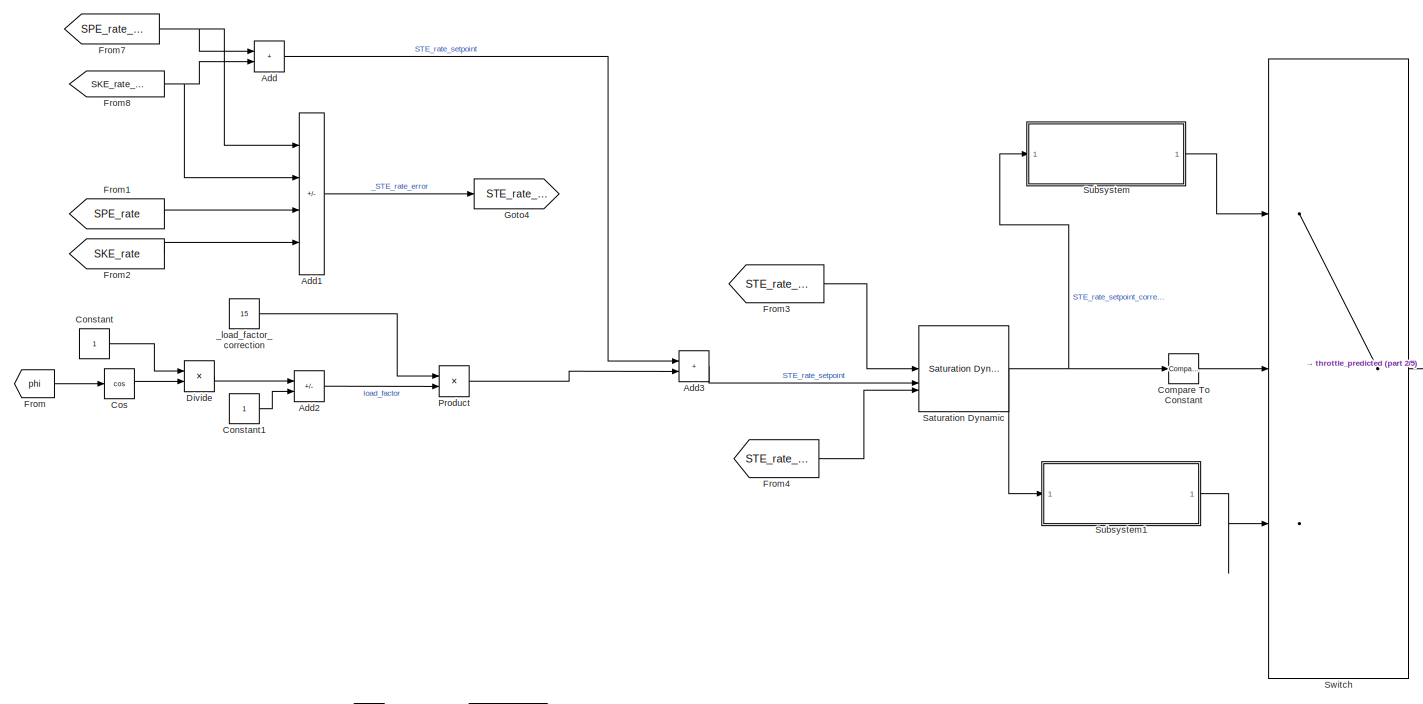
[diagram: TECS/update_throttle_setpoint - part 1/5, middle left region]
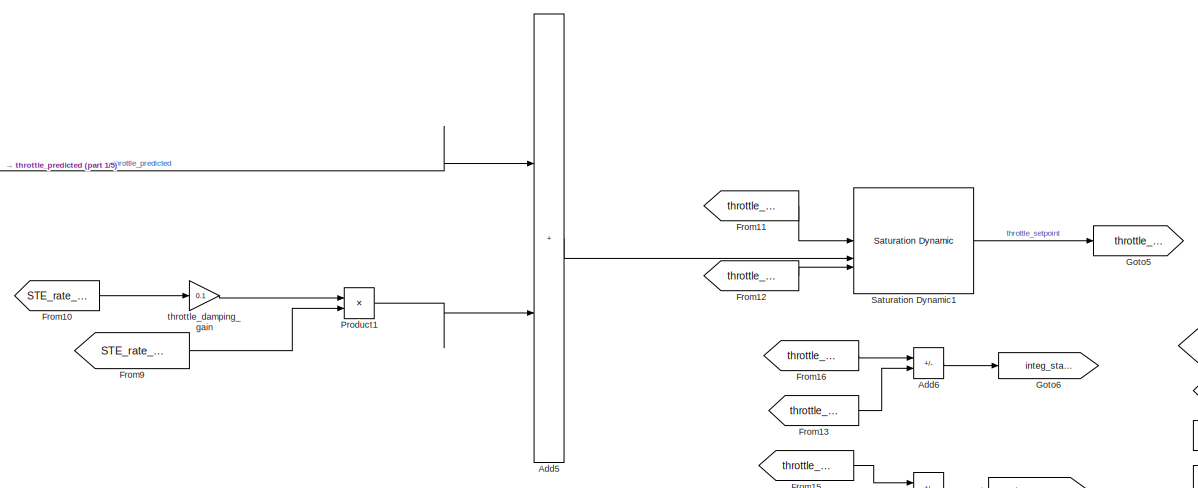
[diagram: TECS/update_throttle_setpoint - part 2/5, central region]
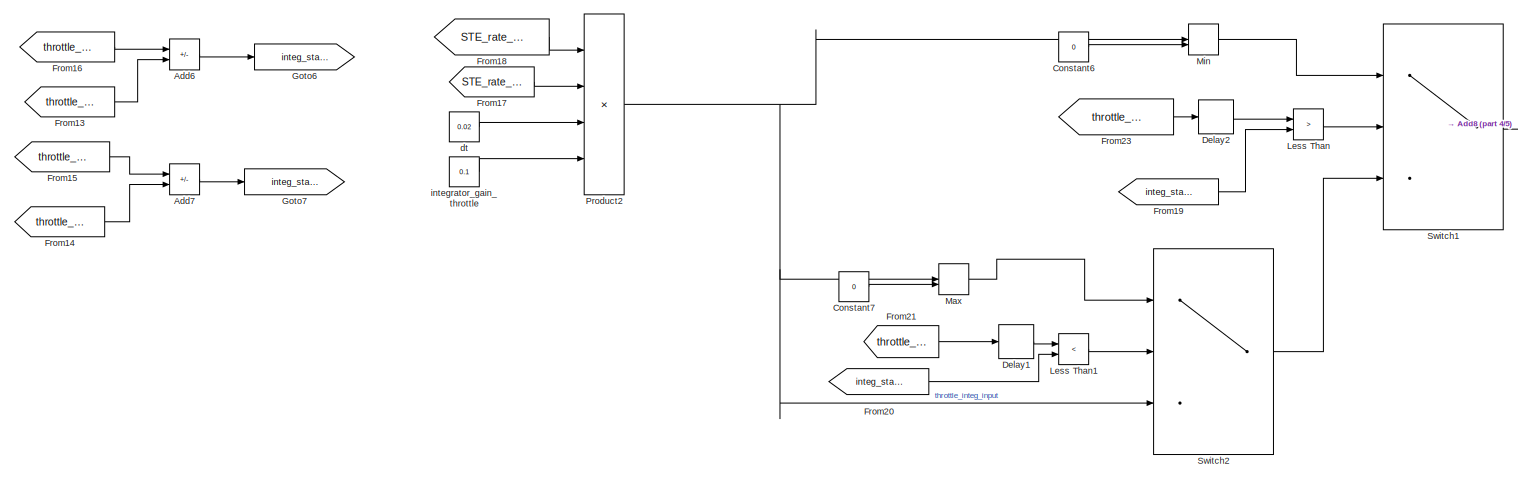
[diagram: TECS/update_throttle_setpoint - part 3/5, bottom center region]
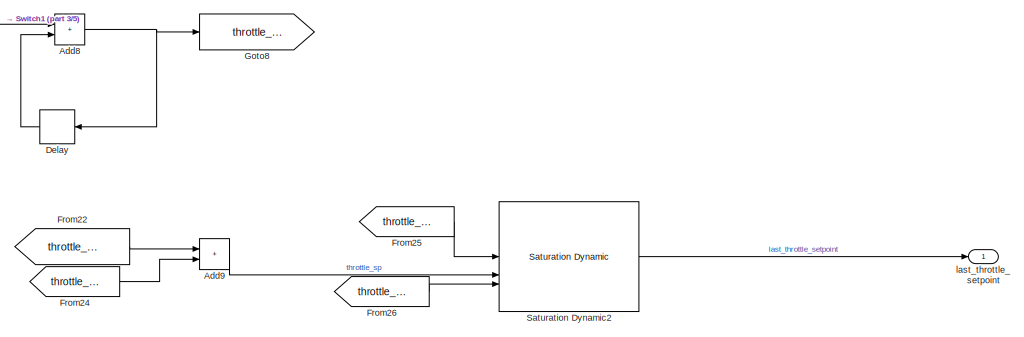
[diagram: TECS/update_throttle_setpoint - part 4/5, bottom right region]
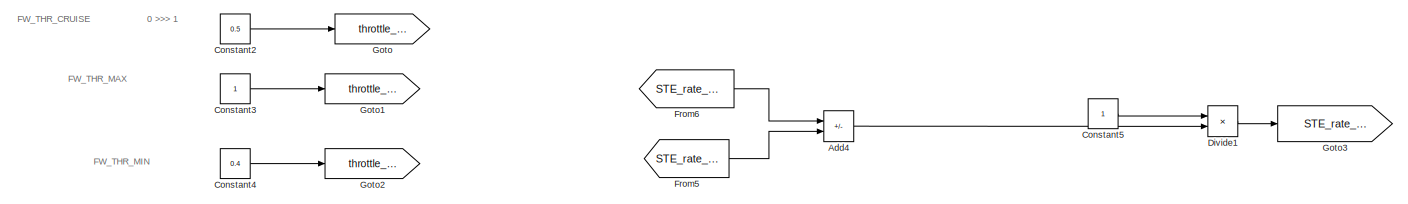
[diagram: TECS/update_throttle_setpoint - part 5/5, bottom left region]
BLOCK [SubSystem] TECS/update_throttle_setpoint
BLOCK [Sum] TECS/update_throttle_setpoint/Add
  IconShape = rectangular
BLOCK [Sum] TECS/update_throttle_setpoint/Add1
  IconShape = rectangular
  Inputs = ++--
BLOCK [Sum] TECS/update_throttle_setpoint/Add2
  IconShape = rectangular
  Inputs = +-
BLOCK [Sum] TECS/update_throttle_setpoint/Add3
  IconShape = rectangular
BLOCK [Sum] TECS/update_throttle_setpoint/Add4
  IconShape = rectangular
  Inputs = +-
BLOCK [Sum] TECS/update_throttle_setpoint/Add5
  IconShape = rectangular
BLOCK [Sum] TECS/update_throttle_setpoint/Add6
  IconShape = rectangular
  Inputs = +-
BLOCK [Sum] TECS/update_throttle_setpoint/Add7
  IconShape = rectangular
  Inputs = +-
BLOCK [Sum] TECS/update_throttle_setpoint/Add8
  IconShape = rectangular
BLOCK [Sum] TECS/update_throttle_setpoint/Add9
  IconShape = rectangular
BLOCK [Reference] TECS/update_throttle_setpoint/Compare To Constant  REF=simulink/Logic and Bit
Operations/Compare
To Constant
  SourceBlock = simulink/Logic and Bit\nOperations/Compare\nTo Constant
  SourceType = Compare To Constant
BLOCK [Constant] TECS/update_throttle_setpoint/Constant
BLOCK [Constant] TECS/update_throttle_setpoint/Constant1
BLOCK [Constant] TECS/update_throttle_setpoint/Constant2
  Value = 0.5
BLOCK [Constant] TECS/update_throttle_setpoint/Constant3
BLOCK [Constant] TECS/update_throttle_setpoint/Constant4
  Value = 0.4
BLOCK [Constant] TECS/update_throttle_setpoint/Constant5
BLOCK [Constant] TECS/update_throttle_setpoint/Constant6
  Value = 0
BLOCK [Constant] TECS/update_throttle_setpoint/Constant7
  Value = 0
BLOCK [Trigonometry] TECS/update_throttle_setpoint/Cos
  Operator = cos
BLOCK [Delay] TECS/update_throttle_setpoint/Delay
  DelayLength = 1
  InputPortMap = u0
  NameLocation = top
BLOCK [Delay] TECS/update_throttle_setpoint/Delay1
  DelayLength = 1
  InputPortMap = u0
BLOCK [Delay] TECS/update_throttle_setpoint/Delay2
  DelayLength = 1
  InputPortMap = u0
BLOCK [Product] TECS/update_throttle_setpoint/Divide
  Inputs = */
BLOCK [Product] TECS/update_throttle_setpoint/Divide1
  Inputs = */
BLOCK [From] TECS/update_throttle_setpoint/From
  GotoTag = phi
  TagVisibility = global
BLOCK [From] TECS/update_throttle_setpoint/From1
  GotoTag = SPE_rate
  TagVisibility = global
BLOCK [From] TECS/update_throttle_setpoint/From10
  GotoTag = STE_rate_error
  TagVisibility = global
BLOCK [From] TECS/update_throttle_setpoint/From11
  GotoTag = throttle_max
  TagVisibility = global
BLOCK [From] TECS/update_throttle_setpoint/From12
  GotoTag = throttle_min
  TagVisibility = global
BLOCK [From] TECS/update_throttle_setpoint/From13
  GotoTag = throttle_setpoint
  TagVisibility = global
BLOCK [From] TECS/update_throttle_setpoint/From14
  GotoTag = throttle_setpoint
  TagVisibility = global
BLOCK [From] TECS/update_throttle_setpoint/From15
  GotoTag = throttle_min
  TagVisibility = global
BLOCK [From] TECS/update_throttle_setpoint/From16
  GotoTag = throttle_max
  TagVisibility = global
BLOCK [From] TECS/update_throttle_setpoint/From17
  GotoTag = STE_rate_error
  TagVisibility = global
BLOCK [From] TECS/update_throttle_setpoint/From18
  GotoTag = STE_rate_to_throttle
  TagVisibility = global
BLOCK [From] TECS/update_throttle_setpoint/From19
  GotoTag = integ_state_max
  TagVisibility = global
BLOCK [From] TECS/update_throttle_setpoint/From2
  GotoTag = SKE_rate
  TagVisibility = global
BLOCK [From] TECS/update_throttle_setpoint/From20
  GotoTag = integ_state_min
  TagVisibility = global
BLOCK [From] TECS/update_throttle_setpoint/From21
  GotoTag = throttle_integ_state
  TagVisibility = global
BLOCK [From] TECS/update_throttle_setpoint/From22
  GotoTag = throttle_integ_state
  TagVisibility = global
BLOCK [From] TECS/update_throttle_setpoint/From23
  GotoTag = throttle_integ_state
  TagVisibility = global
BLOCK [From] TECS/update_throttle_setpoint/From24
  GotoTag = throttle_setpoint
  TagVisibility = global
BLOCK [From] TECS/update_throttle_setpoint/From25
  GotoTag = throttle_max
  TagVisibility = global
BLOCK [From] TECS/update_throttle_setpoint/From26
  GotoTag = throttle_min
  TagVisibility = global
BLOCK [From] TECS/update_throttle_setpoint/From3
  GotoTag = STE_rate_max
  TagVisibility = global
BLOCK [From] TECS/update_throttle_setpoint/From4
  GotoTag = STE_rate_min
  TagVisibility = global
BLOCK [From] TECS/update_throttle_setpoint/From5
  GotoTag = STE_rate_min
  TagVisibility = global
BLOCK [From] TECS/update_throttle_setpoint/From6
  GotoTag = STE_rate_max
  TagVisibility = global
BLOCK [From] TECS/update_throttle_setpoint/From7
  GotoTag = SPE_rate_setpoint
  TagVisibility = global
BLOCK [From] TECS/update_throttle_setpoint/From8
  GotoTag = SKE_rate_setpoint
  TagVisibility = global
BLOCK [From] TECS/update_throttle_setpoint/From9
  GotoTag = STE_rate_to_throttle
  TagVisibility = global
BLOCK [Goto] TECS/update_throttle_setpoint/Goto
  GotoTag = throttle_cruise
  TagVisibility = global
BLOCK [Goto] TECS/update_throttle_setpoint/Goto1
  GotoTag = throttle_max
  TagVisibility = global
BLOCK [Goto] TECS/update_throttle_setpoint/Goto2
  GotoTag = throttle_min
  TagVisibility = global
BLOCK [Goto] TECS/update_throttle_setpoint/Goto3
  GotoTag = STE_rate_to_throttle
  TagVisibility = global
BLOCK [Goto] TECS/update_throttle_setpoint/Goto4
  GotoTag = STE_rate_error
  TagVisibility = global
BLOCK [Goto] TECS/update_throttle_setpoint/Goto5
  GotoTag = throttle_setpoint
  TagVisibility = global
BLOCK [Goto] TECS/update_throttle_setpoint/Goto6
  GotoTag = integ_state_max
  TagVisibility = global
BLOCK [Goto] TECS/update_throttle_setpoint/Goto7
  GotoTag = integ_state_min
  TagVisibility = global
BLOCK [Goto] TECS/update_throttle_setpoint/Goto8
  GotoTag = throttle_integ_state
  TagVisibility = global
BLOCK [RelationalOperator] TECS/update_throttle_setpoint/Less Than
  InputSameDT = off
  Operator = >
  OutDataTypeStr = boolean
  RndMeth = Simplest
BLOCK [RelationalOperator] TECS/update_throttle_setpoint/Less Than1
  InputSameDT = off
  Operator = <
  OutDataTypeStr = boolean
  RndMeth = Simplest
BLOCK [MinMax] TECS/update_throttle_setpoint/Max
  Function = max
  Inputs = 2
BLOCK [MinMax] TECS/update_throttle_setpoint/Min
  Inputs = 2
BLOCK [Product] TECS/update_throttle_setpoint/Product
BLOCK [Product] TECS/update_throttle_setpoint/Product1
BLOCK [Product] TECS/update_throttle_setpoint/Product2
  Inputs = 4
BLOCK [Reference] TECS/update_throttle_setpoint/Saturation Dynamic  REF=simulink/Discontinuities/Saturation
Dynamic
  SourceBlock = simulink/Discontinuities/Saturation\nDynamic
  SourceType = Saturation Dynamic
BLOCK [Reference] TECS/update_throttle_setpoint/Saturation Dynamic1  REF=simulink/Discontinuities/Saturation
Dynamic
  SourceBlock = simulink/Discontinuities/Saturation\nDynamic
  SourceType = Saturation Dynamic
BLOCK [Reference] TECS/update_throttle_setpoint/Saturation Dynamic2  REF=simulink/Discontinuities/Saturation
Dynamic
  SourceBlock = simulink/Discontinuities/Saturation\nDynamic
  SourceType = Saturation Dynamic
BLOCK [SubSystem] TECS/update_throttle_setpoint/Subsystem
BLOCK [Sum] TECS/update_throttle_setpoint/Subsystem/Add4
  IconShape = rectangular
  Inputs = +-
BLOCK [Sum] TECS/update_throttle_setpoint/Subsystem/Add5
  IconShape = rectangular
BLOCK [Product] TECS/update_throttle_setpoint/Subsystem/Divide1
  Inputs = */
BLOCK [From] TECS/update_throttle_setpoint/Subsystem/From5
  GotoTag = throttle_cruise
  TagVisibility = global
BLOCK [From] TECS/update_throttle_setpoint/Subsystem/From6
  GotoTag = throttle_max
  TagVisibility = global
BLOCK [From] TECS/update_throttle_setpoint/Subsystem/From9
  GotoTag = STE_rate_max
  TagVisibility = global
BLOCK [Outport] TECS/update_throttle_setpoint/Subsystem/Out1
BLOCK [Product] TECS/update_throttle_setpoint/Subsystem/Product1
BLOCK [Inport] TECS/update_throttle_setpoint/Subsystem/STE_rate_setpoint_corrected
BLOCK [SubSystem] TECS/update_throttle_setpoint/Subsystem1
BLOCK [Sum] TECS/update_throttle_setpoint/Subsystem1/Add6
  IconShape = rectangular
  Inputs = +-
BLOCK [Sum] TECS/update_throttle_setpoint/Subsystem1/Add7
  IconShape = rectangular
BLOCK [Product] TECS/update_throttle_setpoint/Subsystem1/Divide2
  Inputs = */
BLOCK [From] TECS/update_throttle_setpoint/Subsystem1/From10
  GotoTag = throttle_cruise
  TagVisibility = global
BLOCK [From] TECS/update_throttle_setpoint/Subsystem1/From11
  GotoTag = throttle_min
  TagVisibility = global
BLOCK [From] TECS/update_throttle_setpoint/Subsystem1/From12
  GotoTag = STE_rate_min
  TagVisibility = global
BLOCK [Outport] TECS/update_throttle_setpoint/Subsystem1/Out1
BLOCK [Product] TECS/update_throttle_setpoint/Subsystem1/Product2
BLOCK [Inport] TECS/update_throttle_setpoint/Subsystem1/STE_rate_setpoint_corrected
BLOCK [Switch] TECS/update_throttle_setpoint/Switch
  Criteria = u2 ~= 0
  InputSameDT = off
  SaturateOnIntegerOverflow = off
BLOCK [Switch] TECS/update_throttle_setpoint/Switch1
  Criteria = u2 ~= 0
  InputSameDT = off
  SaturateOnIntegerOverflow = off
BLOCK [Switch] TECS/update_throttle_setpoint/Switch2
  Criteria = u2 ~= 0
  InputSameDT = off
  SaturateOnIntegerOverflow = off
BLOCK [Constant] TECS/update_throttle_setpoint/_load_factor_correction
  Value = 15
BLOCK [Constant] TECS/update_throttle_setpoint/dt
  Value = 0.02
BLOCK [Constant] TECS/update_throttle_setpoint/integrator_gain_throttle
  Value = 0.1
BLOCK [Outport] TECS/update_throttle_setpoint/last_throttle_setpoint
BLOCK [Gain] TECS/update_throttle_setpoint/throttle_damping_gain
  Gain = 0.1
ANNOTATION TECS/_update_pitch_setpoint: 0 >>>2
ANNOTATION TECS/_update_pitch_setpoint: 0 >>>>> 2
ANNOTATION TECS/_update_pitch_setpoint: 0.5 >>>>>> 3
ANNOTATION TECS/_update_pitch_setpoint: 1 >>10
ANNOTATION TECS/_update_pitch_setpoint: FW_T_I_GAIN_PIT
ANNOTATION TECS/_update_pitch_setpoint: FW_T_VERT_ACC
ANNOTATION TECS/update_energy_estimates: FROM 6 DoF (z)
ANNOTATION TECS/update_speed_states/update_speed_states: min1 max 10
ANNOTATION TECS/update_throttle_setpoint: 0 >>> 1
ANNOTATION TECS/update_throttle_setpoint: FW_THR_CRUISE
ANNOTATION TECS/update_throttle_setpoint: FW_THR_MAX
ANNOTATION TECS/update_throttle_setpoint: FW_THR_MIN
LINE TECS/From10:1 -> TECS/_update_pitch_setpoint:3
LINE TECS/From13:1 -> TECS/update_speed_states:1
LINE TECS/From15:1 -> TECS/update_energy_estimates:4
NET TECS/From16:1 -> TECS/update_energy_estimates:1, TECS/update_energy_estimates:2
LINE TECS/From7:1 -> TECS/_update_pitch_setpoint:1
LINE TECS/From8:1 -> TECS/_update_pitch_setpoint:4
LINE TECS/From9:1 -> TECS/_update_pitch_setpoint:2
LINE TECS/H_SP:1 -> TECS/runAltitudeControllerSmoothVelocity:1
LINE TECS/V_SP:1 -> TECS/update_speed_setpoint:1
LINE TECS/_update_pitch_setpoint/Add1:1 -> TECS/_update_pitch_setpoint/Add2:1
NET TECS/_update_pitch_setpoint/Add2:1 -> TECS/_update_pitch_setpoint/Product5:2, TECS/_update_pitch_setpoint/Product6:1
NET TECS/_update_pitch_setpoint/Add3:1 -> TECS/_update_pitch_setpoint/Add4:2, TECS/_update_pitch_setpoint/Delay:1
LINE TECS/_update_pitch_setpoint/Add4:1 -> TECS/_update_pitch_setpoint/Divide:1
LINE TECS/_update_pitch_setpoint/Add5:1 -> TECS/_update_pitch_setpoint/Saturation Dynamic:3
LINE TECS/_update_pitch_setpoint/Add6:1 -> TECS/_update_pitch_setpoint/Saturation Dynamic:1
NET TECS/_update_pitch_setpoint/Add:1 -> TECS/_update_pitch_setpoint/Add2:2, TECS/_update_pitch_setpoint/Product7:2
LINE TECS/_update_pitch_setpoint/Constant:1 -> TECS/_update_pitch_setpoint/Product4:2
LINE TECS/_update_pitch_setpoint/Delay1:1 -> TECS/_update_pitch_setpoint/Add5:1
LINE TECS/_update_pitch_setpoint/Delay2:1 -> TECS/_update_pitch_setpoint/Add6:2
LINE TECS/_update_pitch_setpoint/Delay:1 -> TECS/_update_pitch_setpoint/Add3:2
LINE TECS/_update_pitch_setpoint/Divide1:1 -> TECS/_update_pitch_setpoint/Goto5:1
LINE TECS/_update_pitch_setpoint/Divide:1 -> TECS/_update_pitch_setpoint/Saturation:1
LINE TECS/_update_pitch_setpoint/FW_T_SEB_R_FF:1 -> TECS/_update_pitch_setpoint/Goto3:1
LINE TECS/_update_pitch_setpoint/From10:1 -> TECS/_update_pitch_setpoint/Divide1:2
LINE TECS/_update_pitch_setpoint/From11:1 -> TECS/_update_pitch_setpoint/Add5:2
LINE TECS/_update_pitch_setpoint/From12:1 -> TECS/_update_pitch_setpoint/Add6:1
LINE TECS/_update_pitch_setpoint/From1:1 -> TECS/_update_pitch_setpoint/Product1:1
LINE TECS/_update_pitch_setpoint/From2:1 -> TECS/_update_pitch_setpoint/Product2:1
LINE TECS/_update_pitch_setpoint/From3:1 -> TECS/_update_pitch_setpoint/Product3:1
LINE TECS/_update_pitch_setpoint/From4:1 -> TECS/_update_pitch_setpoint/Product5:1
LINE TECS/_update_pitch_setpoint/From5:1 -> TECS/_update_pitch_setpoint/Product4:1
LINE TECS/_update_pitch_setpoint/From6:1 -> TECS/_update_pitch_setpoint/Product6:2
LINE TECS/_update_pitch_setpoint/From7:1 -> TECS/_update_pitch_setpoint/Product7:1
LINE TECS/_update_pitch_setpoint/From8:1 -> TECS/_update_pitch_setpoint/Divide:2
LINE TECS/_update_pitch_setpoint/From9:1 -> TECS/_update_pitch_setpoint/Gain1:1
LINE TECS/_update_pitch_setpoint/From:1 -> TECS/_update_pitch_setpoint/Product:1
LINE TECS/_update_pitch_setpoint/Gain1:1 -> TECS/_update_pitch_setpoint/Divide1:1
LINE TECS/_update_pitch_setpoint/Gain:1 -> TECS/_update_pitch_setpoint/Add3:1
LINE TECS/_update_pitch_setpoint/Product1:1 -> TECS/_update_pitch_setpoint/Add:2
LINE TECS/_update_pitch_setpoint/Product2:1 -> TECS/_update_pitch_setpoint/Add1:1
LINE TECS/_update_pitch_setpoint/Product3:1 -> TECS/_update_pitch_setpoint/Add1:2
LINE TECS/_update_pitch_setpoint/Product4:1 -> TECS/_update_pitch_setpoint/Goto:1
LINE TECS/_update_pitch_setpoint/Product5:1 -> TECS/_update_pitch_setpoint/Gain:1
LINE TECS/_update_pitch_setpoint/Product6:1 -> TECS/_update_pitch_setpoint/Add4:1
LINE TECS/_update_pitch_setpoint/Product7:1 -> TECS/_update_pitch_setpoint/Add4:3
LINE TECS/_update_pitch_setpoint/Product:1 -> TECS/_update_pitch_setpoint/Add:1
LINE TECS/_update_pitch_setpoint/SKE_Rate:1 -> TECS/_update_pitch_setpoint/Product3:2
LINE TECS/_update_pitch_setpoint/SKE_rate_setpoint:1 -> TECS/_update_pitch_setpoint/Product1:2
LINE TECS/_update_pitch_setpoint/SPE_Rate:1 -> TECS/_update_pitch_setpoint/Product2:2
LINE TECS/_update_pitch_setpoint/SPE_rate_setpoint:1 -> TECS/_update_pitch_setpoint/Product:2
NET TECS/_update_pitch_setpoint/Saturation Dynamic:1 -> TECS/_update_pitch_setpoint/Delay1:1, TECS/_update_pitch_setpoint/Delay2:1, TECS/_update_pitch_setpoint/_last_pitch_setpoint:1
LINE TECS/_update_pitch_setpoint/Saturation:1 -> TECS/_update_pitch_setpoint/Saturation Dynamic:2
LINE TECS/_update_pitch_setpoint/_integrator_gain_pitch:1 -> TECS/_update_pitch_setpoint/Goto1:1
LINE TECS/_update_pitch_setpoint/fw_t_ptch_damp:1 -> TECS/_update_pitch_setpoint/Goto2:1
LINE TECS/_update_pitch_setpoint/fw_t_vert_acc:1 -> TECS/_update_pitch_setpoint/Goto4:1
LINE TECS/_update_pitch_setpoint:1 -> TECS/theta_sp:1
LINE TECS/runAltitudeControllerSmoothVelocity/Alt time Const1:1 -> TECS/runAltitudeControllerSmoothVelocity/Goto1:1
LINE TECS/runAltitudeControllerSmoothVelocity/Alt time Const2:1 -> TECS/runAltitudeControllerSmoothVelocity/Goto2:1
LINE TECS/runAltitudeControllerSmoothVelocity/FW_T_ALT_TC:1 -> TECS/runAltitudeControllerSmoothVelocity/Reciprocal1:1
LINE TECS/runAltitudeControllerSmoothVelocity/From93:1 -> TECS/runAltitudeControllerSmoothVelocity/Gain12:1
LINE TECS/runAltitudeControllerSmoothVelocity/From:1 -> TECS/runAltitudeControllerSmoothVelocity/Gain:1
LINE TECS/runAltitudeControllerSmoothVelocity/Gain12:1 -> TECS/runAltitudeControllerSmoothVelocity/Sum9:2
LINE TECS/runAltitudeControllerSmoothVelocity/Gain14:1 -> TECS/runAltitudeControllerSmoothVelocity/Saturation Dynamic2:3
LINE TECS/runAltitudeControllerSmoothVelocity/Gain:1 -> TECS/runAltitudeControllerSmoothVelocity/Sum:2
LINE TECS/runAltitudeControllerSmoothVelocity/H_Desired:1 -> TECS/runAltitudeControllerSmoothVelocity/Sum9:1
LINE TECS/runAltitudeControllerSmoothVelocity/Max Climb rate1:1 -> TECS/runAltitudeControllerSmoothVelocity/Saturation Dynamic2:1
LINE TECS/runAltitudeControllerSmoothVelocity/Max Sink rate1:1 -> TECS/runAltitudeControllerSmoothVelocity/Gain14:1
LINE TECS/runAltitudeControllerSmoothVelocity/Product4:1 -> TECS/runAltitudeControllerSmoothVelocity/Sum:1
LINE TECS/runAltitudeControllerSmoothVelocity/Reciprocal1:1 -> TECS/runAltitudeControllerSmoothVelocity/Product4:1
NET TECS/runAltitudeControllerSmoothVelocity/Saturation Dynamic2:1 -> TECS/runAltitudeControllerSmoothVelocity/hgt_rate_setpoint:1, TECS/runAltitudeControllerSmoothVelocity/hgt_rate_sp:1
LINE TECS/runAltitudeControllerSmoothVelocity/Sum9:1 -> TECS/runAltitudeControllerSmoothVelocity/Product4:2
LINE TECS/runAltitudeControllerSmoothVelocity/Sum:1 -> TECS/runAltitudeControllerSmoothVelocity/Saturation Dynamic2:2
NET TECS/runAltitudeControllerSmoothVelocity:1 -> TECS/Scope1:1, TECS/update_energy_estimates:3
LINE TECS/update_energy_estimates/Add:1 -> TECS/update_energy_estimates/STE_error:1
LINE TECS/update_energy_estimates/Delay1:1 -> TECS/update_energy_estimates/Product2:1
LINE TECS/update_energy_estimates/Delay2:1 -> TECS/update_energy_estimates/Add:2
NET TECS/update_energy_estimates/Delay3:1 -> TECS/update_energy_estimates/Add:4, TECS/update_energy_estimates/Goto4:1
LINE TECS/update_energy_estimates/Delay:1 -> TECS/update_energy_estimates/Product3:1
LINE TECS/update_energy_estimates/From10:1 -> TECS/update_energy_estimates/Product4:2
LINE TECS/update_energy_estimates/From11:1 -> TECS/update_energy_estimates/Product4:1
LINE TECS/update_energy_estimates/From13:1 -> TECS/update_energy_estimates/Product5:2
LINE TECS/update_energy_estimates/From14:1 -> TECS/update_energy_estimates/Product5:1
LINE TECS/update_energy_estimates/From1:1 -> TECS/update_energy_estimates/Product:1
LINE TECS/update_energy_estimates/From2:1 -> TECS/update_energy_estimates/Product1:1
LINE TECS/update_energy_estimates/From3:1 -> TECS/update_energy_estimates/Delay1:1
LINE TECS/update_energy_estimates/From4:1 -> TECS/update_energy_estimates/Delay:1
LINE TECS/update_energy_estimates/From5:1 -> TECS/update_energy_estimates/Square:1
LINE TECS/update_energy_estimates/From6:1 -> TECS/update_energy_estimates/Product:2
LINE TECS/update_energy_estimates/From7:1 -> TECS/update_energy_estimates/Product1:2
LINE TECS/update_energy_estimates/From8:1 -> TECS/update_energy_estimates/Product2:2
LINE TECS/update_energy_estimates/From9:1 -> TECS/update_energy_estimates/Product3:2
LINE TECS/update_energy_estimates/From:1 -> TECS/update_energy_estimates/Square1:1
NET TECS/update_energy_estimates/Gain1:1 -> TECS/update_energy_estimates/Add:3, TECS/update_energy_estimates/Goto1:1
NET TECS/update_energy_estimates/Gain2:1 -> TECS/update_energy_estimates/Delay2:1, TECS/update_energy_estimates/Goto3:1
LINE TECS/update_energy_estimates/Gain3:1 -> TECS/update_energy_estimates/Delay3:1
LINE TECS/update_energy_estimates/Gain4:1 -> TECS/update_energy_estimates/SPE_rate_setpoint:1
LINE TECS/update_energy_estimates/Gain5:1 -> TECS/update_energy_estimates/SPE_rate:1
LINE TECS/update_energy_estimates/Gain6:1 -> TECS/update_energy_estimates/Gain2:1
LINE TECS/update_energy_estimates/Gain7:1 -> TECS/update_energy_estimates/Gain5:1
NET TECS/update_energy_estimates/Gain:1 -> TECS/update_energy_estimates/Add:1, TECS/update_energy_estimates/Goto:1
LINE TECS/update_energy_estimates/Minus1:1 -> TECS/update_energy_estimates/SEB_error:1
LINE TECS/update_energy_estimates/Minus2:1 -> TECS/update_energy_estimates/Minus1:2
LINE TECS/update_energy_estimates/Minus:1 -> TECS/update_energy_estimates/Minus1:1
LINE TECS/update_energy_estimates/Product1:1 -> TECS/update_energy_estimates/Minus2:1
LINE TECS/update_energy_estimates/Product2:1 -> TECS/update_energy_estimates/Minus:2
LINE TECS/update_energy_estimates/Product3:1 -> TECS/update_energy_estimates/Minus2:2
LINE TECS/update_energy_estimates/Product4:1 -> TECS/update_energy_estimates/SKE_rate_setpoint:1
LINE TECS/update_energy_estimates/Product5:1 -> TECS/update_energy_estimates/SKE_rate:1
LINE TECS/update_energy_estimates/Product:1 -> TECS/update_energy_estimates/Minus:1
LINE TECS/update_energy_estimates/SKE_weighting:1 -> TECS/update_energy_estimates/Goto6:1
LINE TECS/update_energy_estimates/SPE_weighting:1 -> TECS/update_energy_estimates/Goto5:1
LINE TECS/update_energy_estimates/Square1:1 -> TECS/update_energy_estimates/Gain3:1
LINE TECS/update_energy_estimates/Square:1 -> TECS/update_energy_estimates/Gain1:1
LINE TECS/update_energy_estimates/hgt_rate_setpoint:1 -> TECS/update_energy_estimates/Gain4:1
LINE TECS/update_energy_estimates/hgt_setpoint:1 -> TECS/update_energy_estimates/Gain:1
LINE TECS/update_energy_estimates/vert_pos_state z from (6DoF):1 -> TECS/update_energy_estimates/Gain6:1
LINE TECS/update_energy_estimates/vert_vel_state:1 -> TECS/update_energy_estimates/Gain7:1
NET TECS/update_energy_estimates:1 -> TECS/Goto5:1, TECS/Scope2:1
NET TECS/update_energy_estimates:2 -> TECS/Goto6:1, TECS/Scope3:1
NET TECS/update_energy_estimates:3 -> TECS/Goto:1, TECS/Scope4:1
NET TECS/update_energy_estimates:4 -> TECS/Goto1:1, TECS/Scope5:1
NET TECS/update_energy_estimates:5 -> TECS/Goto3:1, TECS/Scope6:1
NET TECS/update_energy_estimates:6 -> TECS/Goto4:1, TECS/Scope7:1
LINE TECS/update_pitch_setpoint/Constant10:1 -> TECS/update_pitch_setpoint/Saturation Dynamic9:1
LINE TECS/update_pitch_setpoint/Constant11:1 -> TECS/update_pitch_setpoint/Saturation Dynamic9:3
LINE TECS/update_pitch_setpoint/Constant6:1 -> TECS/update_pitch_setpoint/Sum41:1
LINE TECS/update_pitch_setpoint/Constant7:1 -> TECS/update_pitch_setpoint/Sum42:2
LINE TECS/update_pitch_setpoint/Constant8:1 -> TECS/update_pitch_setpoint/Saturation Dynamic8:1
LINE TECS/update_pitch_setpoint/Constant9:1 -> TECS/update_pitch_setpoint/Saturation Dynamic8:3
LINE TECS/update_pitch_setpoint/Constant:1 -> TECS/update_pitch_setpoint/Product16:2
NET TECS/update_pitch_setpoint/Delay12:1 -> TECS/update_pitch_setpoint/Sum41:2, TECS/update_pitch_setpoint/Sum42:1
LINE TECS/update_pitch_setpoint/Delay13:1 -> TECS/update_pitch_setpoint/Sum44:2
LINE TECS/update_pitch_setpoint/Delay14:1 -> TECS/update_pitch_setpoint/Sum46:2
LINE TECS/update_pitch_setpoint/Delay15:1 -> TECS/update_pitch_setpoint/Sum47:2
LINE TECS/update_pitch_setpoint/From13:1 -> TECS/update_pitch_setpoint/Reciprocal7:1
LINE TECS/update_pitch_setpoint/From32:1 -> TECS/update_pitch_setpoint/KE_weighting:1
LINE TECS/update_pitch_setpoint/From71:1 -> TECS/update_pitch_setpoint/PE weighting:1
LINE TECS/update_pitch_setpoint/From72:1 -> TECS/update_pitch_setpoint/KE weighting:1
LINE TECS/update_pitch_setpoint/From73:1 -> TECS/update_pitch_setpoint/PE_weighting:1
LINE TECS/update_pitch_setpoint/From75:1 -> TECS/update_pitch_setpoint/Product16:1
LINE TECS/update_pitch_setpoint/From77:1 -> TECS/update_pitch_setpoint/Integrator_gain_Pitch:1
LINE TECS/update_pitch_setpoint/From78:1 -> TECS/update_pitch_setpoint/Saturation Dynamic8:2
LINE TECS/update_pitch_setpoint/From79:1 -> TECS/update_pitch_setpoint/Delay12:1
LINE TECS/update_pitch_setpoint/From80:1 -> TECS/update_pitch_setpoint/Saturation Dynamic9:2
LINE TECS/update_pitch_setpoint/From81:1 -> TECS/update_pitch_setpoint/Product22:2
LINE TECS/update_pitch_setpoint/From82:1 -> TECS/update_pitch_setpoint/Gain16:1
LINE TECS/update_pitch_setpoint/From83:1 -> TECS/update_pitch_setpoint/Sum45:2
LINE TECS/update_pitch_setpoint/From84:1 -> TECS/update_pitch_setpoint/Sum45:3
LINE TECS/update_pitch_setpoint/From85:1 -> TECS/update_pitch_setpoint/Product17:1
LINE TECS/update_pitch_setpoint/From86:1 -> TECS/update_pitch_setpoint/Reciprocal6:1
LINE TECS/update_pitch_setpoint/From87:1 -> TECS/update_pitch_setpoint/Saturation Dynamic11:2
LINE TECS/update_pitch_setpoint/From89:1 -> TECS/update_pitch_setpoint/Sum46:1
LINE TECS/update_pitch_setpoint/From90:1 -> TECS/update_pitch_setpoint/Delay14:1
LINE TECS/update_pitch_setpoint/From91:1 -> TECS/update_pitch_setpoint/Sum47:1
LINE TECS/update_pitch_setpoint/From92:1 -> TECS/update_pitch_setpoint/Delay15:1
LINE TECS/update_pitch_setpoint/Gain16:1 -> TECS/update_pitch_setpoint/Sum45:1
LINE TECS/update_pitch_setpoint/Integrator_gain_Pitch:1 -> TECS/update_pitch_setpoint/Goto21:1
LINE TECS/update_pitch_setpoint/KE weighting:1 -> TECS/update_pitch_setpoint/Sum38:2
LINE TECS/update_pitch_setpoint/KE_weighting:1 -> TECS/update_pitch_setpoint/Sum39:2
LINE TECS/update_pitch_setpoint/MATLAB Function1:1 -> TECS/update_pitch_setpoint/Product21:2
LINE TECS/update_pitch_setpoint/MATLAB Function1:2 -> TECS/update_pitch_setpoint/Product23:1
LINE TECS/update_pitch_setpoint/MATLAB Function1:3 -> TECS/update_pitch_setpoint/Product22:1
LINE TECS/update_pitch_setpoint/PE weighting:1 -> TECS/update_pitch_setpoint/Sum38:1
LINE TECS/update_pitch_setpoint/PE_weighting:1 -> TECS/update_pitch_setpoint/Sum39:1
LINE TECS/update_pitch_setpoint/Product16:1 -> TECS/update_pitch_setpoint/Goto20:1
NET TECS/update_pitch_setpoint/Product17:1 -> TECS/update_pitch_setpoint/Goto24:1, TECS/update_pitch_setpoint/Saturation Dynamic10:2
LINE TECS/update_pitch_setpoint/Product18:1 -> TECS/update_pitch_setpoint/Goto26:1
LINE TECS/update_pitch_setpoint/Product21:1 -> TECS/update_pitch_setpoint/Sum43:1
LINE TECS/update_pitch_setpoint/Product22:1 -> TECS/update_pitch_setpoint/Sum43:3
LINE TECS/update_pitch_setpoint/Product23:1 -> TECS/update_pitch_setpoint/Sum43:2
LINE TECS/update_pitch_setpoint/Reciprocal6:1 -> TECS/update_pitch_setpoint/Product17:2
LINE TECS/update_pitch_setpoint/Reciprocal7:1 -> TECS/update_pitch_setpoint/Product18:2
LINE TECS/update_pitch_setpoint/Saturation Dynamic10:1 -> TECS/update_pitch_setpoint/Goto25:1
NET TECS/update_pitch_setpoint/Saturation Dynamic11:1 -> TECS/update_pitch_setpoint/Goto17:1, TECS/update_pitch_setpoint/Scope10:1, TECS/update_pitch_setpoint/_last_pitch_setpoint:1
LINE TECS/update_pitch_setpoint/Saturation Dynamic8:1 -> TECS/update_pitch_setpoint/Product21:1
LINE TECS/update_pitch_setpoint/Saturation Dynamic9:1 -> TECS/update_pitch_setpoint/Product23:2
NET TECS/update_pitch_setpoint/Sum38:1 -> TECS/update_pitch_setpoint/Goto6:1, TECS/update_pitch_setpoint/Sum40:1
LINE TECS/update_pitch_setpoint/Sum39:1 -> TECS/update_pitch_setpoint/Sum40:2
LINE TECS/update_pitch_setpoint/Sum40:1 -> TECS/update_pitch_setpoint/Goto19:1
LINE TECS/update_pitch_setpoint/Sum41:1 -> TECS/update_pitch_setpoint/MATLAB Function1:1
LINE TECS/update_pitch_setpoint/Sum42:1 -> TECS/update_pitch_setpoint/MATLAB Function1:2
LINE TECS/update_pitch_setpoint/Sum43:1 -> TECS/update_pitch_setpoint/dt3:1
NET TECS/update_pitch_setpoint/Sum44:1 -> TECS/update_pitch_setpoint/Delay13:1, TECS/update_pitch_setpoint/Goto22:1
LINE TECS/update_pitch_setpoint/Sum45:1 -> TECS/update_pitch_setpoint/Goto23:1
LINE TECS/update_pitch_setpoint/Sum46:1 -> TECS/update_pitch_setpoint/Saturation Dynamic11:1
LINE TECS/update_pitch_setpoint/Sum47:1 -> TECS/update_pitch_setpoint/Saturation Dynamic11:3
LINE TECS/update_pitch_setpoint/dt3:1 -> TECS/update_pitch_setpoint/Sum44:1
LINE TECS/update_pitch_setpoint/dt4:1 -> TECS/update_pitch_setpoint/Product18:1
LINE TECS/update_pitch_setpoint/pitch_sp_max:1 -> TECS/update_pitch_setpoint/Saturation Dynamic10:1
LINE TECS/update_pitch_setpoint/pitch_sp_min:1 -> TECS/update_pitch_setpoint/Saturation Dynamic10:3
LINE TECS/update_pitch_setpoint/vert_acc_lim:1 -> TECS/update_pitch_setpoint/dt4:1
LINE TECS/update_pitch_setpoint:1 -> TECS/Scope9:1
LINE TECS/update_speed_setpoint/Constant1:1 -> TECS/update_speed_setpoint/Product:2
LINE TECS/update_speed_setpoint/Constant3:1 -> TECS/update_speed_setpoint/Product1:2
LINE TECS/update_speed_setpoint/Divide1:1 -> TECS/update_speed_setpoint/Saturation Dynamic:3
LINE TECS/update_speed_setpoint/Divide:1 -> TECS/update_speed_setpoint/Saturation Dynamic:1
LINE TECS/update_speed_setpoint/From1:1 -> TECS/update_speed_setpoint/Gain2:1
LINE TECS/update_speed_setpoint/From2:1 -> TECS/update_speed_setpoint/Divide:2
LINE TECS/update_speed_setpoint/From3:1 -> TECS/update_speed_setpoint/Divide1:2
LINE TECS/update_speed_setpoint/From4:1 -> TECS/update_speed_setpoint/Subtract:2
LINE TECS/update_speed_setpoint/From:1 -> TECS/update_speed_setpoint/Gain1:1
LINE TECS/update_speed_setpoint/Gain1:1 -> TECS/update_speed_setpoint/Divide:1
LINE TECS/update_speed_setpoint/Gain2:1 -> TECS/update_speed_setpoint/Divide1:1
LINE TECS/update_speed_setpoint/Gain:1 -> TECS/update_speed_setpoint/Product1:1
LINE TECS/update_speed_setpoint/Product1:1 -> TECS/update_speed_setpoint/Goto1:1
LINE TECS/update_speed_setpoint/Product:1 -> TECS/update_speed_setpoint/Goto:1
LINE TECS/update_speed_setpoint/Saturation Dynamic:1 -> TECS/update_speed_setpoint/TAS_rate_setpoint:1
NET TECS/update_speed_setpoint/Saturation:1 -> TECS/update_speed_setpoint/Goto2:1, TECS/update_speed_setpoint/Subtract:1
LINE TECS/update_speed_setpoint/Subtract:1 -> TECS/update_speed_setpoint/airspeed_error_gain:1
LINE TECS/update_speed_setpoint/TAS_setpoint:1 -> TECS/update_speed_setpoint/Saturation:1
LINE TECS/update_speed_setpoint/airspeed_error_gain:1 -> TECS/update_speed_setpoint/Saturation Dynamic:2
LINE TECS/update_speed_setpoint/max_climb_rate:1 -> TECS/update_speed_setpoint/Product:1
LINE TECS/update_speed_setpoint/min_sink_rate:1 -> TECS/update_speed_setpoint/Gain:1
NET TECS/update_speed_setpoint:1 -> TECS/Goto8:1, TECS/Scope:1
LINE TECS/update_speed_states/EAS:1 -> TECS/update_speed_states/update_speed_states:1
LINE TECS/update_speed_states/update_speed_states/Constant:1 -> TECS/update_speed_states/update_speed_states/Product2:3
LINE TECS/update_speed_states/update_speed_states/Delay1:1 -> TECS/update_speed_states/update_speed_states/Sum1:2
LINE TECS/update_speed_states/update_speed_states/Delay2:1 -> TECS/update_speed_states/update_speed_states/Sum:2
LINE TECS/update_speed_states/update_speed_states/Delay:1 -> TECS/update_speed_states/update_speed_states/Sum3:2
NET TECS/update_speed_states/update_speed_states/Derivative:1 -> TECS/update_speed_states/update_speed_states/Goto4:1, TECS/update_speed_states/update_speed_states/Sum2:2
LINE TECS/update_speed_states/update_speed_states/EAS2TAS:1 -> TECS/update_speed_states/update_speed_states/Sum:1
LINE TECS/update_speed_states/update_speed_states/EAS:1 -> TECS/update_speed_states/update_speed_states/EAS2TAS:1
LINE TECS/update_speed_states/update_speed_states/From13:1 -> TECS/update_speed_states/update_speed_states/Delay2:2
LINE TECS/update_speed_states/update_speed_states/From1:1 -> TECS/update_speed_states/update_speed_states/Product2:2
LINE TECS/update_speed_states/update_speed_states/From2:1 -> TECS/update_speed_states/update_speed_states/Product3:2
LINE TECS/update_speed_states/update_speed_states/From3:1 -> TECS/update_speed_states/update_speed_states/Delay2:1
LINE TECS/update_speed_states/update_speed_states/From4:1 -> TECS/update_speed_states/update_speed_states/Derivative:1
LINE TECS/update_speed_states/update_speed_states/From5:1 -> TECS/update_speed_states/update_speed_states/Delay:2
LINE TECS/update_speed_states/update_speed_states/From:1 -> TECS/update_speed_states/update_speed_states/Product2:1
NET TECS/update_speed_states/update_speed_states/Gain:1 -> TECS/update_speed_states/update_speed_states/Goto3:1, TECS/update_speed_states/update_speed_states/tas_state:1
NET TECS/update_speed_states/update_speed_states/Omega:1 -> TECS/update_speed_states/update_speed_states/Goto1:1, TECS/update_speed_states/update_speed_states/Square:1
LINE TECS/update_speed_states/update_speed_states/Product1:1 -> TECS/update_speed_states/update_speed_states/Sum1:1
LINE TECS/update_speed_states/update_speed_states/Product2:1 -> TECS/update_speed_states/update_speed_states/Sum2:3
LINE TECS/update_speed_states/update_speed_states/Product3:1 -> TECS/update_speed_states/update_speed_states/Sum3:1
LINE TECS/update_speed_states/update_speed_states/Product:1 -> TECS/update_speed_states/update_speed_states/Product1:1
LINE TECS/update_speed_states/update_speed_states/Square:1 -> TECS/update_speed_states/update_speed_states/Product:2
NET TECS/update_speed_states/update_speed_states/Sum1:1 -> TECS/update_speed_states/update_speed_states/Delay1:1, TECS/update_speed_states/update_speed_states/Sum2:1
LINE TECS/update_speed_states/update_speed_states/Sum2:1 -> TECS/update_speed_states/update_speed_states/Product3:1
NET TECS/update_speed_states/update_speed_states/Sum3:1 -> TECS/update_speed_states/update_speed_states/Delay:1, TECS/update_speed_states/update_speed_states/Gain:1
NET TECS/update_speed_states/update_speed_states/Sum:1 -> TECS/update_speed_states/update_speed_states/Goto:1, TECS/update_speed_states/update_speed_states/Product:1
NET TECS/update_speed_states/update_speed_states/dt:1 -> TECS/update_speed_states/update_speed_states/Goto2:1, TECS/update_speed_states/update_speed_states/Product1:2
NET TECS/update_speed_states/update_speed_states:1 -> TECS/update_speed_states/Scope:1, TECS/update_speed_states/tas_state:1
LINE TECS/update_speed_states:1 -> TECS/Goto2:1
LINE TECS/update_throttle_setpoint/Add1:1 -> TECS/update_throttle_setpoint/Goto4:1
LINE TECS/update_throttle_setpoint/Add2:1 -> TECS/update_throttle_setpoint/Product:2
LINE TECS/update_throttle_setpoint/Add3:1 -> TECS/update_throttle_setpoint/Saturation Dynamic:2
LINE TECS/update_throttle_setpoint/Add4:1 -> TECS/update_throttle_setpoint/Divide1:2
LINE TECS/update_throttle_setpoint/Add5:1 -> TECS/update_throttle_setpoint/Saturation Dynamic1:2
LINE TECS/update_throttle_setpoint/Add6:1 -> TECS/update_throttle_setpoint/Goto6:1
LINE TECS/update_throttle_setpoint/Add7:1 -> TECS/update_throttle_setpoint/Goto7:1
NET TECS/update_throttle_setpoint/Add8:1 -> TECS/update_throttle_setpoint/Delay:1, TECS/update_throttle_setpoint/Goto8:1
LINE TECS/update_throttle_setpoint/Add9:1 -> TECS/update_throttle_setpoint/Saturation Dynamic2:2
LINE TECS/update_throttle_setpoint/Add:1 -> TECS/update_throttle_setpoint/Add3:1
LINE TECS/update_throttle_setpoint/Compare To Constant:1 -> TECS/update_throttle_setpoint/Switch:2
LINE TECS/update_throttle_setpoint/Constant1:1 -> TECS/update_throttle_setpoint/Add2:2
LINE TECS/update_throttle_setpoint/Constant2:1 -> TECS/update_throttle_setpoint/Goto:1
LINE TECS/update_throttle_setpoint/Constant3:1 -> TECS/update_throttle_setpoint/Goto1:1
LINE TECS/update_throttle_setpoint/Constant4:1 -> TECS/update_throttle_setpoint/Goto2:1
LINE TECS/update_throttle_setpoint/Constant5:1 -> TECS/update_throttle_setpoint/Divide1:1
LINE TECS/update_throttle_setpoint/Constant6:1 -> TECS/update_throttle_setpoint/Min:2
LINE TECS/update_throttle_setpoint/Constant7:1 -> TECS/update_throttle_setpoint/Max:2
LINE TECS/update_throttle_setpoint/Constant:1 -> TECS/update_throttle_setpoint/Divide:1
LINE TECS/update_throttle_setpoint/Cos:1 -> TECS/update_throttle_setpoint/Divide:2
LINE TECS/update_throttle_setpoint/Delay1:1 -> TECS/update_throttle_setpoint/Less Than1:1
LINE TECS/update_throttle_setpoint/Delay2:1 -> TECS/update_throttle_setpoint/Less Than:1
LINE TECS/update_throttle_setpoint/Delay:1 -> TECS/update_throttle_setpoint/Add8:2
LINE TECS/update_throttle_setpoint/Divide1:1 -> TECS/update_throttle_setpoint/Goto3:1
LINE TECS/update_throttle_setpoint/Divide:1 -> TECS/update_throttle_setpoint/Add2:1
LINE TECS/update_throttle_setpoint/From10:1 -> TECS/update_throttle_setpoint/throttle_damping_gain:1
LINE TECS/update_throttle_setpoint/From11:1 -> TECS/update_throttle_setpoint/Saturation Dynamic1:1
LINE TECS/update_throttle_setpoint/From12:1 -> TECS/update_throttle_setpoint/Saturation Dynamic1:3
LINE TECS/update_throttle_setpoint/From13:1 -> TECS/update_throttle_setpoint/Add6:2
LINE TECS/update_throttle_setpoint/From14:1 -> TECS/update_throttle_setpoint/Add7:2
LINE TECS/update_throttle_setpoint/From15:1 -> TECS/update_throttle_setpoint/Add7:1
LINE TECS/update_throttle_setpoint/From16:1 -> TECS/update_throttle_setpoint/Add6:1
LINE TECS/update_throttle_setpoint/From17:1 -> TECS/update_throttle_setpoint/Product2:2
LINE TECS/update_throttle_setpoint/From18:1 -> TECS/update_throttle_setpoint/Product2:1
LINE TECS/update_throttle_setpoint/From19:1 -> TECS/update_throttle_setpoint/Less Than:2
LINE TECS/update_throttle_setpoint/From1:1 -> TECS/update_throttle_setpoint/Add1:3
LINE TECS/update_throttle_setpoint/From20:1 -> TECS/update_throttle_setpoint/Less Than1:2
LINE TECS/update_throttle_setpoint/From21:1 -> TECS/update_throttle_setpoint/Delay1:1
LINE TECS/update_throttle_setpoint/From22:1 -> TECS/update_throttle_setpoint/Add9:1
LINE TECS/update_throttle_setpoint/From23:1 -> TECS/update_throttle_setpoint/Delay2:1
LINE TECS/update_throttle_setpoint/From24:1 -> TECS/update_throttle_setpoint/Add9:2
LINE TECS/update_throttle_setpoint/From25:1 -> TECS/update_throttle_setpoint/Saturation Dynamic2:1
LINE TECS/update_throttle_setpoint/From26:1 -> TECS/update_throttle_setpoint/Saturation Dynamic2:3
LINE TECS/update_throttle_setpoint/From2:1 -> TECS/update_throttle_setpoint/Add1:4
LINE TECS/update_throttle_setpoint/From3:1 -> TECS/update_throttle_setpoint/Saturation Dynamic:1
LINE TECS/update_throttle_setpoint/From4:1 -> TECS/update_throttle_setpoint/Saturation Dynamic:3
LINE TECS/update_throttle_setpoint/From5:1 -> TECS/update_throttle_setpoint/Add4:2
LINE TECS/update_throttle_setpoint/From6:1 -> TECS/update_throttle_setpoint/Add4:1
NET TECS/update_throttle_setpoint/From7:1 -> TECS/update_throttle_setpoint/Add1:1, TECS/update_throttle_setpoint/Add:1
NET TECS/update_throttle_setpoint/From8:1 -> TECS/update_throttle_setpoint/Add1:2, TECS/update_throttle_setpoint/Add:2
LINE TECS/update_throttle_setpoint/From9:1 -> TECS/update_throttle_setpoint/Product1:2
LINE TECS/update_throttle_setpoint/From:1 -> TECS/update_throttle_setpoint/Cos:1
LINE TECS/update_throttle_setpoint/Less Than1:1 -> TECS/update_throttle_setpoint/Switch2:2
LINE TECS/update_throttle_setpoint/Less Than:1 -> TECS/update_throttle_setpoint/Switch1:2
LINE TECS/update_throttle_setpoint/Max:1 -> TECS/update_throttle_setpoint/Switch2:1
LINE TECS/update_throttle_setpoint/Min:1 -> TECS/update_throttle_setpoint/Switch1:1
LINE TECS/update_throttle_setpoint/Product1:1 -> TECS/update_throttle_setpoint/Add5:2
NET TECS/update_throttle_setpoint/Product2:1 -> TECS/update_throttle_setpoint/Max:1, TECS/update_throttle_setpoint/Min:1, TECS/update_throttle_setpoint/Switch2:3
LINE TECS/update_throttle_setpoint/Product:1 -> TECS/update_throttle_setpoint/Add3:2
LINE TECS/update_throttle_setpoint/Saturation Dynamic1:1 -> TECS/update_throttle_setpoint/Goto5:1
LINE TECS/update_throttle_setpoint/Saturation Dynamic2:1 -> TECS/update_throttle_setpoint/last_throttle_setpoint:1
NET TECS/update_throttle_setpoint/Saturation Dynamic:1 -> TECS/update_throttle_setpoint/Compare To Constant:1, TECS/update_throttle_setpoint/Subsystem1:1, TECS/update_throttle_setpoint/Subsystem:1
LINE TECS/update_throttle_setpoint/Subsystem/Add4:1 -> TECS/update_throttle_setpoint/Subsystem/Product1:1
LINE TECS/update_throttle_setpoint/Subsystem/Add5:1 -> TECS/update_throttle_setpoint/Subsystem/Out1:1
LINE TECS/update_throttle_setpoint/Subsystem/Divide1:1 -> TECS/update_throttle_setpoint/Subsystem/Product1:2
NET TECS/update_throttle_setpoint/Subsystem/From5:1 -> TECS/update_throttle_setpoint/Subsystem/Add4:2, TECS/update_throttle_setpoint/Subsystem/Add5:2
LINE TECS/update_throttle_setpoint/Subsystem/From6:1 -> TECS/update_throttle_setpoint/Subsystem/Add4:1
LINE TECS/update_throttle_setpoint/Subsystem/From9:1 -> TECS/update_throttle_setpoint/Subsystem/Divide1:2
LINE TECS/update_throttle_setpoint/Subsystem/Product1:1 -> TECS/update_throttle_setpoint/Subsystem/Add5:1
LINE TECS/update_throttle_setpoint/Subsystem/STE_rate_setpoint_corrected:1 -> TECS/update_throttle_setpoint/Subsystem/Divide1:1
LINE TECS/update_throttle_setpoint/Subsystem1/Add6:1 -> TECS/update_throttle_setpoint/Subsystem1/Product2:1
LINE TECS/update_throttle_setpoint/Subsystem1/Add7:1 -> TECS/update_throttle_setpoint/Subsystem1/Out1:1
LINE TECS/update_throttle_setpoint/Subsystem1/Divide2:1 -> TECS/update_throttle_setpoint/Subsystem1/Product2:2
NET TECS/update_throttle_setpoint/Subsystem1/From10:1 -> TECS/update_throttle_setpoint/Subsystem1/Add6:2, TECS/update_throttle_setpoint/Subsystem1/Add7:2
LINE TECS/update_throttle_setpoint/Subsystem1/From11:1 -> TECS/update_throttle_setpoint/Subsystem1/Add6:1
LINE TECS/update_throttle_setpoint/Subsystem1/From12:1 -> TECS/update_throttle_setpoint/Subsystem1/Divide2:2
LINE TECS/update_throttle_setpoint/Subsystem1/Product2:1 -> TECS/update_throttle_setpoint/Subsystem1/Add7:1
LINE TECS/update_throttle_setpoint/Subsystem1/STE_rate_setpoint_corrected:1 -> TECS/update_throttle_setpoint/Subsystem1/Divide2:1
LINE TECS/update_throttle_setpoint/Subsystem1:1 -> TECS/update_throttle_setpoint/Switch:3
LINE TECS/update_throttle_setpoint/Subsystem:1 -> TECS/update_throttle_setpoint/Switch:1
LINE TECS/update_throttle_setpoint/Switch1:1 -> TECS/update_throttle_setpoint/Add8:1
LINE TECS/update_throttle_setpoint/Switch2:1 -> TECS/update_throttle_setpoint/Switch1:3
LINE TECS/update_throttle_setpoint/Switch:1 -> TECS/update_throttle_setpoint/Add5:1
LINE TECS/update_throttle_setpoint/_load_factor_correction:1 -> TECS/update_throttle_setpoint/Product:1
LINE TECS/update_throttle_setpoint/dt:1 -> TECS/update_throttle_setpoint/Product2:3
LINE TECS/update_throttle_setpoint/integrator_gain_throttle:1 -> TECS/update_throttle_setpoint/Product2:4
LINE TECS/update_throttle_setpoint/throttle_damping_gain:1 -> TECS/update_throttle_setpoint/Product1:1
LINE TECS/update_throttle_setpoint:1 -> TECS/throttle_sp:1
note: NET lines group one-source signal fan-out (src -> all destinations, sorted); 1:1 wires keep LINE
CHART TECS/update_pitch_setpoint/MATLAB Function1 states=1 transitions=1
  STATE_LABEL 'eML_blk_kernel()'
  STATE_LABEL 'SCRIPT:\nfunction [y,z,w] = fcn(u,v)\nif u>0\n    y=1;\n    z=0;\n    w=0;\nelseif v<0\n    y=0;\n    z=1;\n    w=0;\nelse \n    y=0;\n    z=0;\n    w=1;\nend\n'
CHART  states=0 transitions=0
